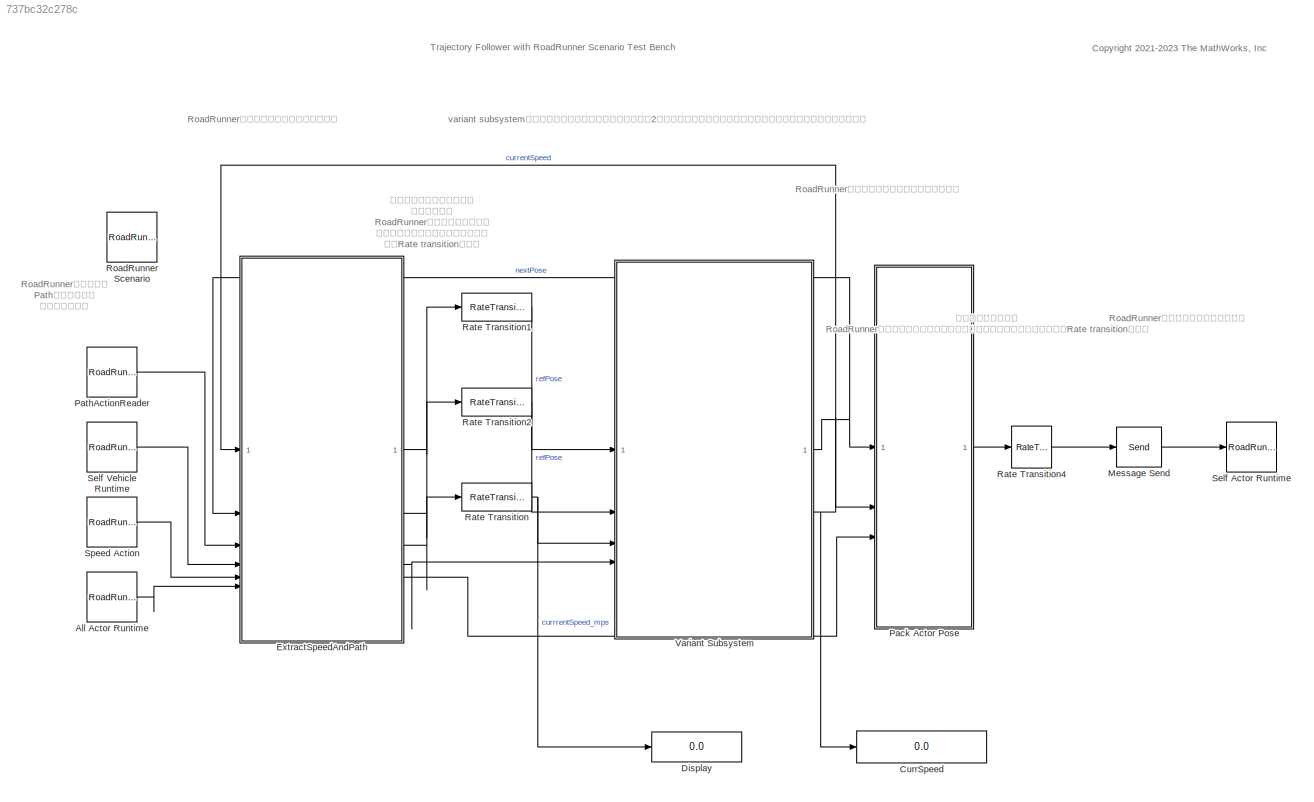
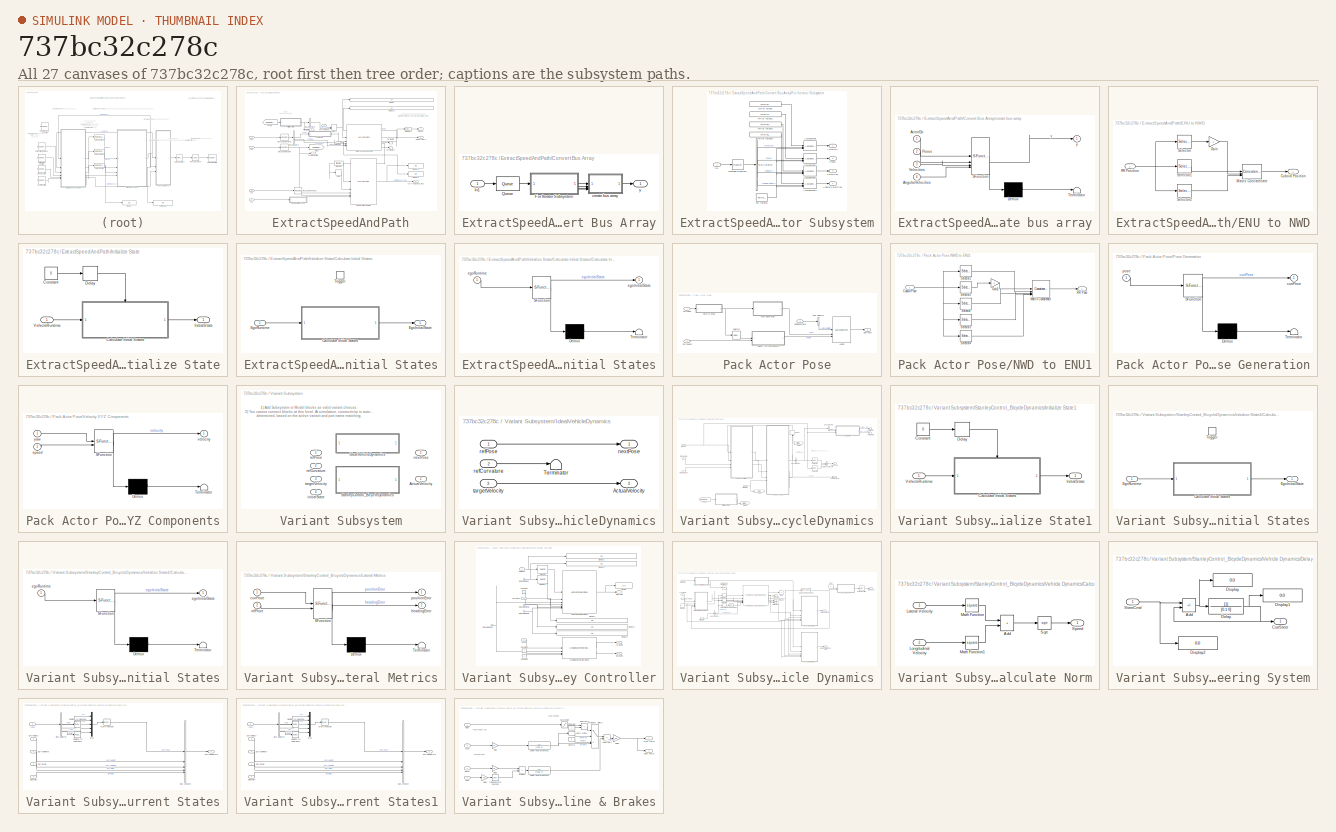
[diagram: thumbnail index - all 27 canvases of the model, root first then tree order]
MODEL slx_737bc32c278c
KIND model
CONFIG AbsTol = auto
CONFIG EnableMultiTasking = off
CONFIG FixedStep = timeStep
CONFIG MaxStep = auto
CONFIG MinStep = auto
CONFIG PostLoadFcn = loadRoadRunnerBusObject();\nhelperSLTrajectoryFollowerWithRRScenarioSetup
CONFIG RelTol = 1e-3
CONFIG SampleTimeConstraint = Unconstrained
CONFIG SolverName = FixedStepAuto
CONFIG StartTime = 0
CONFIG StopTime = 1000
BLOCK [Reference] All Actor Runtime  REF=roadrunnerscenario/RoadRunner Scenario
Reader
  SourceBlock = roadrunnerscenario/RoadRunner Scenario\nReader
BLOCK [Display] CurrSpeed
  Decimation = 1
BLOCK [Display] Display
  Decimation = 1
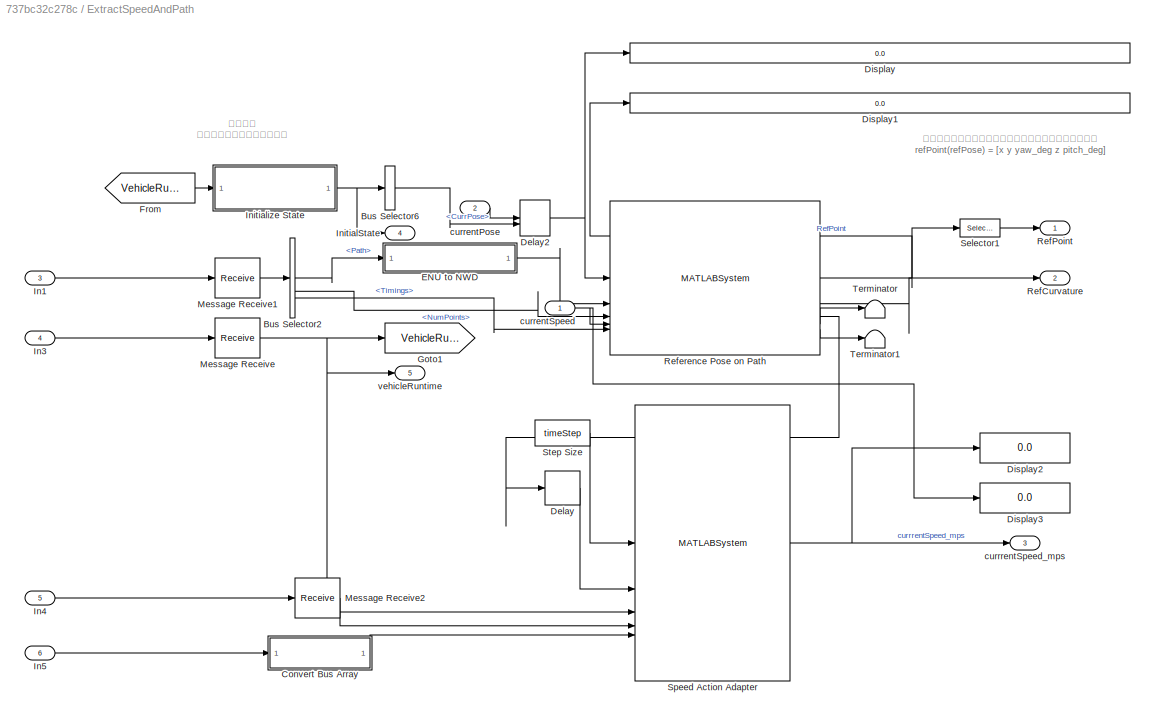
BLOCK [SubSystem] ExtractSpeedAndPath
BLOCK [BusSelector] ExtractSpeedAndPath/Bus Selector2
  OutputSignals = PathTarget.Path,PathTarget.NumPoints,PathTarget.Timings
BLOCK [BusSelector] ExtractSpeedAndPath/Bus Selector6
  OutputSignals = CurrPose
BLOCK [SubSystem] ExtractSpeedAndPath/Convert Bus Array
BLOCK [SubSystem] ExtractSpeedAndPath/Convert Bus Array/For Iterator Subsystem
  TreatAsAtomicUnit = on
BLOCK [Outport] ExtractSpeedAndPath/Convert Bus Array/For Iterator Subsystem/ActorIDs
BLOCK [Outport] ExtractSpeedAndPath/Convert Bus Array/For Iterator Subsystem/AngularVelocities
  Port = 4
BLOCK [Assignment] ExtractSpeedAndPath/Convert Bus Array/For Iterator Subsystem/Assignment
  DiagnosticForDimensions = Warning
  IndexOptions = Index vector (port)
  Indices = 1
  OutputSizes = 1
BLOCK [Assignment] ExtractSpeedAndPath/Convert Bus Array/For Iterator Subsystem/Assignment1
  DiagnosticForDimensions = Warning
  IndexOptions = Assign all,Assign all,Index vector (port)
  Indices = 1,1,1
  NumberOfDimensions = 3
  OutputSizes = 1,1,1
BLOCK [Assignment] ExtractSpeedAndPath/Convert Bus Array/For Iterator Subsystem/Assignment2
  DiagnosticForDimensions = Warning
  IndexOptions = Index vector (port),Assign all
  Indices = 1,1
  NumberOfDimensions = 2
  OutputSizes = 1,1
BLOCK [Assignment] ExtractSpeedAndPath/Convert Bus Array/For Iterator Subsystem/Assignment3
  DiagnosticForDimensions = Warning
  IndexOptions = Index vector (port),Assign all
  Indices = 1,1
  NumberOfDimensions = 2
  OutputSizes = 1,1
BLOCK [BusSelector] ExtractSpeedAndPath/Convert Bus Array/For Iterator Subsystem/Bus Selector
  OutputSignals = ActorID,Pose,Velocity,AngularVelocity
BLOCK [ForIterator] ExtractSpeedAndPath/Convert Bus Array/For Iterator Subsystem/For Iterator
  IterationLimit = N
BLOCK [Inport] ExtractSpeedAndPath/Convert Bus Array/For Iterator Subsystem/In1
BLOCK [Constant] ExtractSpeedAndPath/Convert Bus Array/For Iterator Subsystem/Initial values
  Value = zeros(N, 1, 'uint64')
BLOCK [Constant] ExtractSpeedAndPath/Convert Bus Array/For Iterator Subsystem/Initial values1
  Value = zeros(4, 4, N, 'double')
BLOCK [Constant] ExtractSpeedAndPath/Convert Bus Array/For Iterator Subsystem/Initial values2
  Value = zeros(N, 3, 'double')
BLOCK [Constant] ExtractSpeedAndPath/Convert Bus Array/For Iterator Subsystem/Initial values3
  Value = zeros(N, 3, 'double')
BLOCK [Receive] ExtractSpeedAndPath/Convert Bus Array/For Iterator Subsystem/Message Receive2
  InputPortMap = u0
  InputPortMessageModes = m
  OutputPortMap = o1
  UseInternalQueue = off
BLOCK [Outport] ExtractSpeedAndPath/Convert Bus Array/For Iterator Subsystem/Poses
  Port = 2
BLOCK [Outport] ExtractSpeedAndPath/Convert Bus Array/For Iterator Subsystem/Velocities
  Port = 3
BLOCK [Inport] ExtractSpeedAndPath/Convert Bus Array/In1
BLOCK [Queue] ExtractSpeedAndPath/Convert Bus Array/Queue
  Capacity = N
  InputPortMap = u0
  InputPortMessageModes = m
  OutputPortMap = o5
  OutputPortMessageModes = m
  OverwriteOldest = on
  QueueType = LIFO
BLOCK [SubSystem] ExtractSpeedAndPath/Convert Bus Array/create bus array
  ErrorFcn = Stateflow.Translate.translate
  PermitHierarchicalResolution = ExplicitOnly
  SFBlockType = MATLAB Function
  TreatAsAtomicUnit = on
BLOCK [Demux] ExtractSpeedAndPath/Convert Bus Array/create bus array/ Demux 
  Outputs = 1
BLOCK [S-Function] ExtractSpeedAndPath/Convert Bus Array/create bus array/ SFunction 
  EnableBusSupport = on
  FunctionName = sf_sfun
  Parameters = N
  PortCounts = [4 2]
  SFcnIsStateOwnerBlock = off
  SFunctionDeploymentMode = off
  Tag = Stateflow S-Function 4
BLOCK [Terminator] ExtractSpeedAndPath/Convert Bus Array/create bus array/ Terminator 
BLOCK [Inport] ExtractSpeedAndPath/Convert Bus Array/create bus array/ActorIDs
BLOCK [Inport] ExtractSpeedAndPath/Convert Bus Array/create bus array/AngularVelocities
  Port = 4
BLOCK [Inport] ExtractSpeedAndPath/Convert Bus Array/create bus array/Poses
  Port = 2
BLOCK [Inport] ExtractSpeedAndPath/Convert Bus Array/create bus array/Velocities
  Port = 3
BLOCK [Outport] ExtractSpeedAndPath/Convert Bus Array/create bus array/y
BLOCK [Outport] ExtractSpeedAndPath/Convert Bus Array/y
  OutDataTypeStr = Bus: BusActorRuntime
BLOCK [Delay] ExtractSpeedAndPath/Delay
  DelayLength = 1
  InitialCondition = logical(0)
  InputPortMap = u0
BLOCK [Delay] ExtractSpeedAndPath/Delay2
  DelayLength = 1
  InitialConditionSource = Input port
  InputPortMap = u0,p4
BLOCK [Display] ExtractSpeedAndPath/Display
  Decimation = 1
BLOCK [Display] ExtractSpeedAndPath/Display1
  Decimation = 1
BLOCK [Display] ExtractSpeedAndPath/Display2
  Decimation = 1
BLOCK [Display] ExtractSpeedAndPath/Display3
  Decimation = 1
BLOCK [SubSystem] ExtractSpeedAndPath/ENU to NWD
BLOCK [Outport] ExtractSpeedAndPath/ENU to NWD/Cuboid Position
BLOCK [Gain] ExtractSpeedAndPath/ENU to NWD/Gain
  Gain = -1
BLOCK [Concatenate] ExtractSpeedAndPath/ENU to NWD/Matrix Concatenate
  ConcatenateDimension = 2
  Mode = Multidimensional array
  NumInputs = 3
BLOCK [Inport] ExtractSpeedAndPath/ENU to NWD/RR Position
BLOCK [Selector] ExtractSpeedAndPath/ENU to NWD/Selector
  IndexOptions = Select all,Index vector (dialog)
  Indices = [1 3],1
  InputPortWidth = 3
  NumberOfDimensions = 2
  OutputSizes = 1,1
BLOCK [Selector] ExtractSpeedAndPath/ENU to NWD/Selector1
  IndexOptions = Select all,Index vector (dialog)
  Indices = [1 3],2
  InputPortWidth = 3
  NumberOfDimensions = 2
  OutputSizes = 1,1
BLOCK [Selector] ExtractSpeedAndPath/ENU to NWD/Selector2
  IndexOptions = Select all,Index vector (dialog)
  Indices = [1 3],3
  InputPortWidth = 3
  NumberOfDimensions = 2
  OutputSizes = 1,1
BLOCK [From] ExtractSpeedAndPath/From
  GotoTag = VehicleRuntime
BLOCK [Goto] ExtractSpeedAndPath/Goto1
  GotoTag = VehicleRuntime
BLOCK [Inport] ExtractSpeedAndPath/In1
  Port = 3
BLOCK [Inport] ExtractSpeedAndPath/In3
  Port = 4
BLOCK [Inport] ExtractSpeedAndPath/In4
  Port = 5
BLOCK [Inport] ExtractSpeedAndPath/In5
  Port = 6
BLOCK [Outport] ExtractSpeedAndPath/InitialState
  Port = 4
BLOCK [SubSystem] ExtractSpeedAndPath/Initialize State
BLOCK [SubSystem] ExtractSpeedAndPath/Initialize State/Calculate Initial States
BLOCK [SubSystem] ExtractSpeedAndPath/Initialize State/Calculate Initial States/Calculate Initial States
  ErrorFcn = Stateflow.Translate.translate
  PermitHierarchicalResolution = ExplicitOnly
  SFBlockType = MATLAB Function
  TreatAsAtomicUnit = on
BLOCK [Demux] ExtractSpeedAndPath/Initialize State/Calculate Initial States/Calculate Initial States/ Demux 
  Outputs = 1
BLOCK [S-Function] ExtractSpeedAndPath/Initialize State/Calculate Initial States/Calculate Initial States/ SFunction 
  EnableBusSupport = on
  FunctionName = sf_sfun
  PortCounts = [1 2]
  SFcnIsStateOwnerBlock = off
  SFunctionDeploymentMode = off
  Tag = Stateflow S-Function 6
BLOCK [Terminator] ExtractSpeedAndPath/Initialize State/Calculate Initial States/Calculate Initial States/ Terminator 
BLOCK [Outport] ExtractSpeedAndPath/Initialize State/Calculate Initial States/Calculate Initial States/egoInitialState
BLOCK [Inport] ExtractSpeedAndPath/Initialize State/Calculate Initial States/Calculate Initial States/egoRuntime
BLOCK [Outport] ExtractSpeedAndPath/Initialize State/Calculate Initial States/EgoInitialState
BLOCK [Inport] ExtractSpeedAndPath/Initialize State/Calculate Initial States/EgoRuntime
BLOCK [TriggerPort] ExtractSpeedAndPath/Initialize State/Calculate Initial States/Trigger
  InitialTriggerSignalState = negative
  PortDimensions = 1
  StatesWhenEnabling = held
  VariantControl = (inherit)
BLOCK [Constant] ExtractSpeedAndPath/Initialize State/Constant
  Value = 0
BLOCK [Delay] ExtractSpeedAndPath/Initialize State/Delay
  DelayLength = 1
  InitialCondition = 1
  InputPortMap = u0
BLOCK [Outport] ExtractSpeedAndPath/Initialize State/InitialState
BLOCK [Inport] ExtractSpeedAndPath/Initialize State/VehicleRuntime
BLOCK [Receive] ExtractSpeedAndPath/Message Receive
  InputPortMap = u0
  InputPortMessageModes = m
  OutputPortMap = o1
BLOCK [Receive] ExtractSpeedAndPath/Message Receive1
  InputPortMap = u0
  InputPortMessageModes = m
  OutputPortMap = o1
BLOCK [Receive] ExtractSpeedAndPath/Message Receive2
  InputPortMap = u0
  InputPortMessageModes = m
  OutputPortMap = o1
BLOCK [Outport] ExtractSpeedAndPath/RefCurvature
  Port = 2
BLOCK [Outport] ExtractSpeedAndPath/RefPoint
BLOCK [MATLABSystem] ExtractSpeedAndPath/Reference Pose on Path
  MaskDisplay = disp(['HelperReferencePoseOnPath' char(10) '' char(10) '' char(10) '' char(10) '']);\nport_label('input',1,'PrevVehicleInfo');\nport_label('input',2,'Trajectory');\nport_label('input',3,'NumTrajPoints');\nport_label('input',4,'currentSpeed');\nport_label('input',5,'Traj_timings');\nport_label('output',1,'RefPointOnPath');\nport_label('output',2,'RefCurvature');\nport_label('output',3,'IsGoalReached');\npor...<+74ch>
  MaskType = HelperReferencePoseOnPath
  SimulateUsing = Interpreted execution
  System = HelperReferencePoseOnPath
  controlTimestep = 0.1
  debugFig = false
  maxNumWaypoints = 500
  numReferencePose = numReferencePose
  output_offset = output_offset_referenceOnPath
  refPointSpeedOffset = useDynamicsStanley == false
  refPts_offset = refPts_offset
  saveFigVideo = false
  searchIndx = 10
  timeStep = timeStep
  zoomFig = 7
BLOCK [Selector] ExtractSpeedAndPath/Selector1
  IndexOptions = Index vector (dialog),Select all
  Indices = 1,1
  InputPortWidth = 3
  NumberOfDimensions = 2
  OutputSizes = 1,1
BLOCK [MATLABSystem] ExtractSpeedAndPath/Speed Action Adapter
  MaskDisplay = disp(['HelperSpeedActionAdapter' char(10) '' char(10) '']);\nport_label('input',1,'timestep');\nport_label('input',2,'stopVehicle');\nport_label('input',3,'vehicleRuntime');\nport_label('input',4,'msgSpeedAction');\nport_label('input',5,'msgAllVehicleRuntime');\nport_label('output',1,'currentSpeed');
  MaskType = HelperSpeedActionAdapter
  SimulateUsing = Interpreted execution
  System = HelperSpeedActionAdapter
  actorRuntimeNum = 16
BLOCK [Constant] ExtractSpeedAndPath/Step Size
  Value = timeStep
BLOCK [Terminator] ExtractSpeedAndPath/Terminator
BLOCK [Terminator] ExtractSpeedAndPath/Terminator1
BLOCK [Inport] ExtractSpeedAndPath/currentPose
  Port = 2
BLOCK [Inport] ExtractSpeedAndPath/currentSpeed
BLOCK [Outport] ExtractSpeedAndPath/currrentSpeed_mps
  Port = 3
BLOCK [Outport] ExtractSpeedAndPath/vehicleRuntime
  Port = 5
BLOCK [Send] Message Send
  InputPortMap = u1
  OutputPortMessageModes = m
BLOCK [SubSystem] Pack Actor Pose
BLOCK [BusAssignment] Pack Actor Pose/Assign
  AssignedSignals = Pose,Velocity
BLOCK [BusSelector] Pack Actor Pose/Bus Selector
  OutputSignals = ActorRuntime
BLOCK [Inport] Pack Actor Pose/CurrPose
BLOCK [Inport] Pack Actor Pose/CurrSpeed
  Port = 2
BLOCK [Outport] Pack Actor Pose/Ego Pose
BLOCK [SubSystem] Pack Actor Pose/NWD to ENU1
BLOCK [Inport] Pack Actor Pose/NWD to ENU1/Cuboid Pose
BLOCK [Gain] Pack Actor Pose/NWD to ENU1/Gain1
  Gain = -1
BLOCK [Concatenate] Pack Actor Pose/NWD to ENU1/Matrix Concatenate
  ConcatenateDimension = 2
  Mode = Multidimensional array
  NumInputs = 5
BLOCK [Outport] Pack Actor Pose/NWD to ENU1/RR Pose
BLOCK [Selector] Pack Actor Pose/NWD to ENU1/Selector
  IndexOptions = Index vector (dialog)
  Indices = 3
  InputPortWidth = 5
  OutputSizes = 1
BLOCK [Selector] Pack Actor Pose/NWD to ENU1/Selector1
  IndexOptions = Index vector (dialog)
  Indices = 1
  InputPortWidth = 5
  OutputSizes = 1
BLOCK [Selector] Pack Actor Pose/NWD to ENU1/Selector2
  IndexOptions = Index vector (dialog)
  Indices = 2
  InputPortWidth = 5
  OutputSizes = 1
BLOCK [Selector] Pack Actor Pose/NWD to ENU1/Selector3
  IndexOptions = Index vector (dialog)
  Indices = 4
  InputPortWidth = 5
  OutputSizes = 1
BLOCK [Selector] Pack Actor Pose/NWD to ENU1/Selector4
  IndexOptions = Index vector (dialog)
  Indices = 5
  InputPortWidth = 5
  OutputSizes = 1
BLOCK [SubSystem] Pack Actor Pose/Pose Generation
  ErrorFcn = Stateflow.Translate.translate
  PermitHierarchicalResolution = ExplicitOnly
  SFBlockType = MATLAB Function
  TreatAsAtomicUnit = on
BLOCK [Demux] Pack Actor Pose/Pose Generation/ Demux 
  Outputs = 1
BLOCK [S-Function] Pack Actor Pose/Pose Generation/ SFunction 
  EnableBusSupport = on
  FunctionName = sf_sfun
  PortCounts = [1 2]
  SFcnIsStateOwnerBlock = off
  SFunctionDeploymentMode = off
  Tag = Stateflow S-Function 1
BLOCK [Terminator] Pack Actor Pose/Pose Generation/ Terminator 
BLOCK [Outport] Pack Actor Pose/Pose Generation/currPose
BLOCK [Inport] Pack Actor Pose/Pose Generation/pose
BLOCK [Selector] Pack Actor Pose/Selector
  IndexOptions = Index vector (dialog)
  Indices = 3
  InputPortWidth = 5
  OutputSizes = 1
BLOCK [Inport] Pack Actor Pose/VehicleRuntime
  Port = 3
BLOCK [SubSystem] Pack Actor Pose/Velocity XYZ Components
  ErrorFcn = Stateflow.Translate.translate
  PermitHierarchicalResolution = ExplicitOnly
  SFBlockType = MATLAB Function
  TreatAsAtomicUnit = on
BLOCK [Demux] Pack Actor Pose/Velocity XYZ Components/ Demux 
  Outputs = 1
BLOCK [S-Function] Pack Actor Pose/Velocity XYZ Components/ SFunction 
  EnableBusSupport = on
  FunctionName = sf_sfun
  PortCounts = [2 2]
  SFcnIsStateOwnerBlock = off
  SFunctionDeploymentMode = off
  Tag = Stateflow S-Function 3
BLOCK [Terminator] Pack Actor Pose/Velocity XYZ Components/ Terminator 
BLOCK [Inport] Pack Actor Pose/Velocity XYZ Components/speed
  Port = 2
BLOCK [Outport] Pack Actor Pose/Velocity XYZ Components/velocity
BLOCK [Inport] Pack Actor Pose/Velocity XYZ Components/yaw
BLOCK [Reference] PathActionReader  REF=roadrunnerscenario/RoadRunner Scenario
Reader
  SourceBlock = roadrunnerscenario/RoadRunner Scenario\nReader
BLOCK [RateTransition] Rate Transition
  OutPortSampleTime = timeStep
BLOCK [RateTransition] Rate Transition1
  OutPortSampleTime = timeStep
BLOCK [RateTransition] Rate Transition2
  OutPortSampleTime = timeStep
BLOCK [RateTransition] Rate Transition4
  OutPortSampleTime = RRtimeStep
BLOCK [Reference] RoadRunner Scenario  REF=roadrunnerscenario/RoadRunner Scenario
  SourceBlock = roadrunnerscenario/RoadRunner Scenario
BLOCK [Reference] Self Actor Runtime  REF=roadrunnerscenario/RoadRunner Scenario
Writer
  SourceBlock = roadrunnerscenario/RoadRunner Scenario\nWriter
BLOCK [Reference] Self Vehicle Runtime  REF=roadrunnerscenario/RoadRunner Scenario
Reader
  SourceBlock = roadrunnerscenario/RoadRunner Scenario\nReader
BLOCK [Reference] Speed Action  REF=roadrunnerscenario/RoadRunner Scenario
Reader
  SourceBlock = roadrunnerscenario/RoadRunner Scenario\nReader
BLOCK [SubSystem] Variant Subsystem
  Variant = on
BLOCK [Outport] Variant Subsystem/ActualVelocity
  Port = 2
BLOCK [SubSystem] Variant Subsystem/IdealVehicleDynamics
  VariantControl = useDynamicsStanley == false
BLOCK [Outport] Variant Subsystem/IdealVehicleDynamics/ActualVelocity
  Port = 2
BLOCK [Terminator] Variant Subsystem/IdealVehicleDynamics/Terminator
BLOCK [Outport] Variant Subsystem/IdealVehicleDynamics/nextPose
BLOCK [Inport] Variant Subsystem/IdealVehicleDynamics/refCurvature
  Port = 2
BLOCK [Inport] Variant Subsystem/IdealVehicleDynamics/refPose
BLOCK [Inport] Variant Subsystem/IdealVehicleDynamics/targetVelocity
  Port = 3
BLOCK [SubSystem] Variant Subsystem/StanleyControl_BicycleDynamics
  VariantControl = useDynamicsStanley == true
BLOCK [Outport] Variant Subsystem/StanleyControl_BicycleDynamics/ActualVelocity
  Port = 2
BLOCK [BusSelector] Variant Subsystem/StanleyControl_BicycleDynamics/Bus Selector
  OutputSignals = CurrPose
BLOCK [BusSelector] Variant Subsystem/StanleyControl_BicycleDynamics/Bus Selector2
  Commented = on
  OutputSignals = CurrPose
BLOCK [Delay] Variant Subsystem/StanleyControl_BicycleDynamics/Delay1
  DelayLength = 1
  InitialConditionSource = Input port
  InputPortMap = u0,p4
  NameLocation = right
BLOCK [From] Variant Subsystem/StanleyControl_BicycleDynamics/From2
  Commented = on
  GotoTag = VehicleRuntime
BLOCK [From] Variant Subsystem/StanleyControl_BicycleDynamics/From3
  GotoTag = InitialState
  NameLocation = top
BLOCK [Goto] Variant Subsystem/StanleyControl_BicycleDynamics/Goto
  GotoTag = InitialState
BLOCK [Goto] Variant Subsystem/StanleyControl_BicycleDynamics/Goto2
  Commented = on
  GotoTag = InitialState
BLOCK [SubSystem] Variant Subsystem/StanleyControl_BicycleDynamics/Initialize State1
  Commented = on
BLOCK [SubSystem] Variant Subsystem/StanleyControl_BicycleDynamics/Initialize State1/Calculate Initial States
BLOCK [SubSystem] Variant Subsystem/StanleyControl_BicycleDynamics/Initialize State1/Calculate Initial States/Calculate Initial States
  ErrorFcn = Stateflow.Translate.translate
  PermitHierarchicalResolution = ExplicitOnly
  SFBlockType = MATLAB Function
  TreatAsAtomicUnit = on
BLOCK [Demux] Variant Subsystem/StanleyControl_BicycleDynamics/Initialize State1/Calculate Initial States/Calculate Initial States/ Demux 
  Outputs = 1
BLOCK [S-Function] Variant Subsystem/StanleyControl_BicycleDynamics/Initialize State1/Calculate Initial States/Calculate Initial States/ SFunction 
  EnableBusSupport = off
  FunctionName = sf_sfun
  PortCounts = [1 2]
  SFcnIsStateOwnerBlock = off
  SFunctionDeploymentMode = off
  Tag = Stateflow S-Function 2
BLOCK [Terminator] Variant Subsystem/StanleyControl_BicycleDynamics/Initialize State1/Calculate Initial States/Calculate Initial States/ Terminator 
BLOCK [Outport] Variant Subsystem/StanleyControl_BicycleDynamics/Initialize State1/Calculate Initial States/Calculate Initial States/egoInitialState
BLOCK [Inport] Variant Subsystem/StanleyControl_BicycleDynamics/Initialize State1/Calculate Initial States/Calculate Initial States/egoRuntime
BLOCK [Outport] Variant Subsystem/StanleyControl_BicycleDynamics/Initialize State1/Calculate Initial States/EgoInitialState
BLOCK [Inport] Variant Subsystem/StanleyControl_BicycleDynamics/Initialize State1/Calculate Initial States/EgoRuntime
BLOCK [TriggerPort] Variant Subsystem/StanleyControl_BicycleDynamics/Initialize State1/Calculate Initial States/Trigger
  InitialTriggerSignalState = negative
  PortDimensions = 1
  StatesWhenEnabling = held
  VariantControl = (inherit)
BLOCK [Constant] Variant Subsystem/StanleyControl_BicycleDynamics/Initialize State1/Constant
  Value = 0
BLOCK [Delay] Variant Subsystem/StanleyControl_BicycleDynamics/Initialize State1/Delay
  DelayLength = 1
  InitialCondition = 1
  InputPortMap = u0
BLOCK [Outport] Variant Subsystem/StanleyControl_BicycleDynamics/Initialize State1/InitialState
BLOCK [Inport] Variant Subsystem/StanleyControl_BicycleDynamics/Initialize State1/VehicleRuntime
BLOCK [SubSystem] Variant Subsystem/StanleyControl_BicycleDynamics/Lateral Metrics
  Commented = on
  ErrorFcn = Stateflow.Translate.translate
  PermitHierarchicalResolution = ExplicitOnly
  SFBlockType = MATLAB Function
  TreatAsAtomicUnit = on
BLOCK [Demux] Variant Subsystem/StanleyControl_BicycleDynamics/Lateral Metrics/ Demux 
  Outputs = 1
BLOCK [S-Function] Variant Subsystem/StanleyControl_BicycleDynamics/Lateral Metrics/ SFunction 
  EnableBusSupport = off
  FunctionName = sf_sfun
  PortCounts = [2 3]
  SFcnIsStateOwnerBlock = off
  SFunctionDeploymentMode = off
  Tag = Stateflow S-Function 5
BLOCK [Terminator] Variant Subsystem/StanleyControl_BicycleDynamics/Lateral Metrics/ Terminator 
BLOCK [Inport] Variant Subsystem/StanleyControl_BicycleDynamics/Lateral Metrics/currPose
BLOCK [Outport] Variant Subsystem/StanleyControl_BicycleDynamics/Lateral Metrics/headingError
  Port = 2
  VectorParamsAs1DForOutWhenUnconnected = off
BLOCK [Outport] Variant Subsystem/StanleyControl_BicycleDynamics/Lateral Metrics/positionError
  VectorParamsAs1DForOutWhenUnconnected = off
BLOCK [Inport] Variant Subsystem/StanleyControl_BicycleDynamics/Lateral Metrics/refPose
  Port = 2
BLOCK [Selector] Variant Subsystem/StanleyControl_BicycleDynamics/Selector
  IndexOptions = Index vector (dialog)
  Indices = 1:3
  InputPortWidth = 5
  OutputSizes = 1
BLOCK [Selector] Variant Subsystem/StanleyControl_BicycleDynamics/Selector1
  IndexOptions = Index vector (dialog)
  Indices = 4:5
  InputPortWidth = 5
  OutputSizes = 1
BLOCK [SubSystem] Variant Subsystem/StanleyControl_BicycleDynamics/Stanley Controller
BLOCK [Outport] Variant Subsystem/StanleyControl_BicycleDynamics/Stanley Controller/AccelCmd
  Port = 2
BLOCK [Constant] Variant Subsystem/StanleyControl_BicycleDynamics/Stanley Controller/Constant1
BLOCK [Constant] Variant Subsystem/StanleyControl_BicycleDynamics/Stanley Controller/Constant2
BLOCK [Constant] Variant Subsystem/StanleyControl_BicycleDynamics/Stanley Controller/Constant3
  Value = 0
BLOCK [Inport] Variant Subsystem/StanleyControl_BicycleDynamics/Stanley Controller/Curvature
  Port = 3
BLOCK [Outport] Variant Subsystem/StanleyControl_BicycleDynamics/Stanley Controller/DecelCmd
  Port = 3
BLOCK [Display] Variant Subsystem/StanleyControl_BicycleDynamics/Stanley Controller/Display
  Decimation = 1
BLOCK [Display] Variant Subsystem/StanleyControl_BicycleDynamics/Stanley Controller/Display1
  Decimation = 1
BLOCK [Display] Variant Subsystem/StanleyControl_BicycleDynamics/Stanley Controller/Display2
  Decimation = 1
BLOCK [Display] Variant Subsystem/StanleyControl_BicycleDynamics/Stanley Controller/Display3
  Decimation = 1
BLOCK [Display] Variant Subsystem/StanleyControl_BicycleDynamics/Stanley Controller/Display4
  Decimation = 1
BLOCK [Display] Variant Subsystem/StanleyControl_BicycleDynamics/Stanley Controller/Display5
  Decimation = 1
BLOCK [Inport] Variant Subsystem/StanleyControl_BicycleDynamics/Stanley Controller/In Bus Element
BLOCK [Inport] Variant Subsystem/StanleyControl_BicycleDynamics/Stanley Controller/In Bus Element1
BLOCK [Inport] Variant Subsystem/StanleyControl_BicycleDynamics/Stanley Controller/In Bus Element2
BLOCK [Inport] Variant Subsystem/StanleyControl_BicycleDynamics/Stanley Controller/In Bus Element3
BLOCK [Reference] Variant Subsystem/StanleyControl_BicycleDynamics/Stanley Controller/Lateral Controller Stanley  REF=drivingvehiclecontroller/Lateral Controller Stanley
  SourceBlock = drivingvehiclecontroller/Lateral Controller Stanley
  SourceType = Lateral Controller Stanley
BLOCK [Reference] Variant Subsystem/StanleyControl_BicycleDynamics/Stanley Controller/Longitudinal Controller Stanley  REF=drivingvehiclecontroller/Longitudinal Controller Stanley
  SourceBlock = drivingvehiclecontroller/Longitudinal Controller Stanley
  SourceType = Longitudinal Controller Stanley
BLOCK [Inport] Variant Subsystem/StanleyControl_BicycleDynamics/Stanley Controller/RefPose
  Port = 2
BLOCK [Selector] Variant Subsystem/StanleyControl_BicycleDynamics/Stanley Controller/Selector
  IndexOptions = Index vector (dialog)
  Indices = [1:3]
  InputPortWidth = 5
  OutputSizes = 1
BLOCK [Selector] Variant Subsystem/StanleyControl_BicycleDynamics/Stanley Controller/Selector1
  IndexOptions = Index vector (dialog)
  Indices = [1:3]
  InputPortWidth = 5
  OutputSizes = 1
BLOCK [Inport] Variant Subsystem/StanleyControl_BicycleDynamics/Stanley Controller/Speed
  Port = 4
BLOCK [Outport] Variant Subsystem/StanleyControl_BicycleDynamics/Stanley Controller/SteerCmd
BLOCK [Terminator] Variant Subsystem/StanleyControl_BicycleDynamics/Terminator
  Commented = on
BLOCK [Terminator] Variant Subsystem/StanleyControl_BicycleDynamics/Terminator1
  Commented = on
BLOCK [Concatenate] Variant Subsystem/StanleyControl_BicycleDynamics/Vector Concatenate
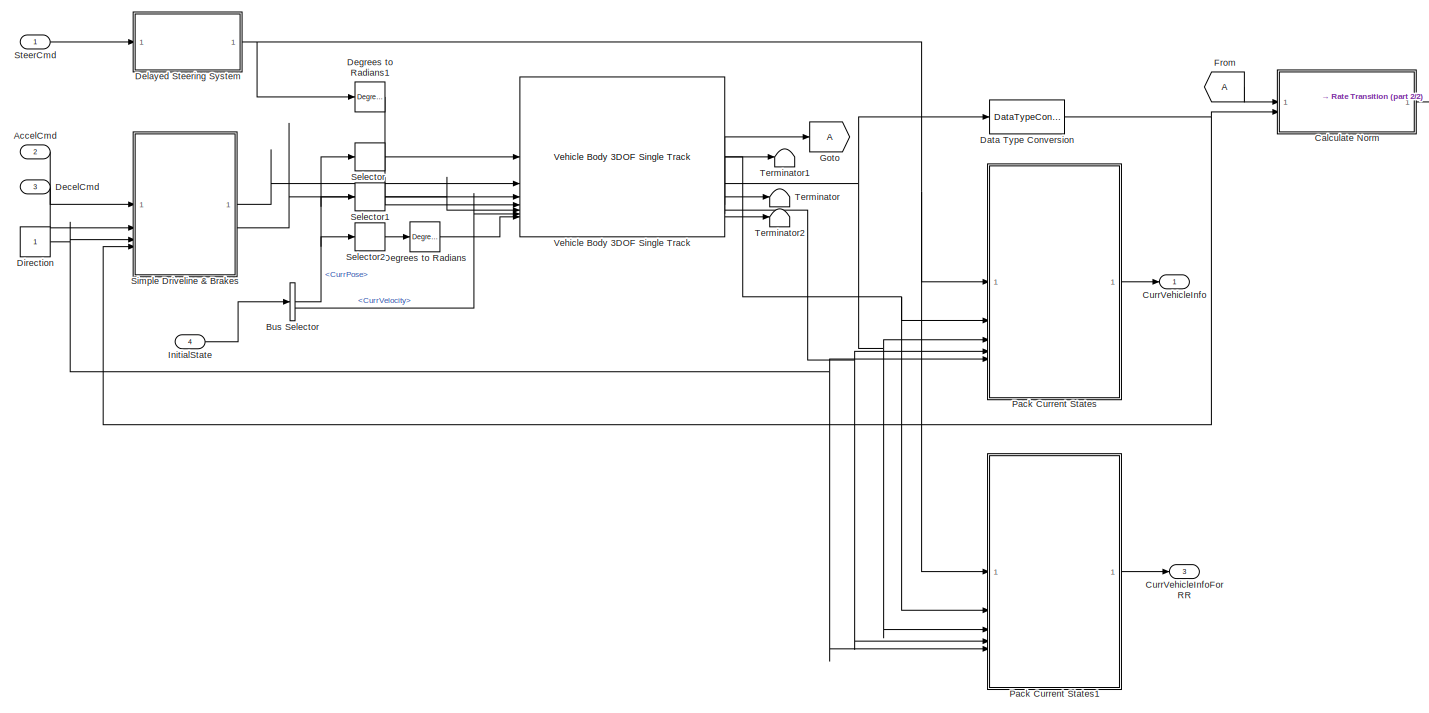
[diagram: Variant Subsystem/StanleyControl_BicycleDynamics/Vehicle Dynamics - part 1/2, most of the canvas]
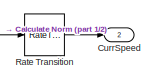
[diagram: Variant Subsystem/StanleyControl_BicycleDynamics/Vehicle Dynamics - part 2/2, top right region]
BLOCK [SubSystem] Variant Subsystem/StanleyControl_BicycleDynamics/Vehicle Dynamics
BLOCK [Inport] Variant Subsystem/StanleyControl_BicycleDynamics/Vehicle Dynamics/AccelCmd
  Port = 2
BLOCK [BusSelector] Variant Subsystem/StanleyControl_BicycleDynamics/Vehicle Dynamics/Bus Selector
  OutputSignals = CurrPose,CurrVelocity
BLOCK [SubSystem] Variant Subsystem/StanleyControl_BicycleDynamics/Vehicle Dynamics/Calculate Norm
BLOCK [Sum] Variant Subsystem/StanleyControl_BicycleDynamics/Vehicle Dynamics/Calculate Norm/Add
  IconShape = rectangular
BLOCK [Inport] Variant Subsystem/StanleyControl_BicycleDynamics/Vehicle Dynamics/Calculate Norm/Lateral Velocity
BLOCK [Inport] Variant Subsystem/StanleyControl_BicycleDynamics/Vehicle Dynamics/Calculate Norm/Longitudinal Velocity
  Port = 2
BLOCK [Math] Variant Subsystem/StanleyControl_BicycleDynamics/Vehicle Dynamics/Calculate Norm/Math Function
  Operator = square
BLOCK [Math] Variant Subsystem/StanleyControl_BicycleDynamics/Vehicle Dynamics/Calculate Norm/Math Function1
  Operator = square
BLOCK [Outport] Variant Subsystem/StanleyControl_BicycleDynamics/Vehicle Dynamics/Calculate Norm/Speed
BLOCK [Sqrt] Variant Subsystem/StanleyControl_BicycleDynamics/Vehicle Dynamics/Calculate Norm/Sqrt
BLOCK [Outport] Variant Subsystem/StanleyControl_BicycleDynamics/Vehicle Dynamics/CurrSpeed
  Port = 2
BLOCK [Outport] Variant Subsystem/StanleyControl_BicycleDynamics/Vehicle Dynamics/CurrVehicleInfo
  VectorParamsAs1DForOutWhenUnconnected = off
BLOCK [Outport] Variant Subsystem/StanleyControl_BicycleDynamics/Vehicle Dynamics/CurrVehicleInfoForRR
  Port = 3
  VectorParamsAs1DForOutWhenUnconnected = off
BLOCK [DataTypeConversion] Variant Subsystem/StanleyControl_BicycleDynamics/Vehicle Dynamics/Data Type Conversion
  OutDataTypeStr = double
  RndMeth = Floor
  SaturateOnIntegerOverflow = off
BLOCK [Inport] Variant Subsystem/StanleyControl_BicycleDynamics/Vehicle Dynamics/DecelCmd
  Port = 3
BLOCK [Reference] Variant Subsystem/StanleyControl_BicycleDynamics/Vehicle Dynamics/Degrees to Radians  REF=simulink_extras/Transformations/Degrees to
Radians
  SourceBlock = simulink_extras/Transformations/Degrees to\nRadians
  SourceType = DegreesToRadians
BLOCK [Reference] Variant Subsystem/StanleyControl_BicycleDynamics/Vehicle Dynamics/Degrees to Radians1  REF=simulink_extras/Transformations/Degrees to
Radians
  SourceBlock = simulink_extras/Transformations/Degrees to\nRadians
  SourceType = DegreesToRadians
BLOCK [SubSystem] Variant Subsystem/StanleyControl_BicycleDynamics/Vehicle Dynamics/Delayed Steering System
BLOCK [Sum] Variant Subsystem/StanleyControl_BicycleDynamics/Vehicle Dynamics/Delayed Steering System/Add
  IconShape = rectangular
  Inputs = +-
BLOCK [Outport] Variant Subsystem/StanleyControl_BicycleDynamics/Vehicle Dynamics/Delayed Steering System/CurrSteer
  VectorParamsAs1DForOutWhenUnconnected = off
BLOCK [TransferFcn] Variant Subsystem/StanleyControl_BicycleDynamics/Vehicle Dynamics/Delayed Steering System/Delay
  Denominator = [0.1 0]
BLOCK [Display] Variant Subsystem/StanleyControl_BicycleDynamics/Vehicle Dynamics/Delayed Steering System/Display
  Decimation = 1
BLOCK [Display] Variant Subsystem/StanleyControl_BicycleDynamics/Vehicle Dynamics/Delayed Steering System/Display1
  Decimation = 1
BLOCK [Display] Variant Subsystem/StanleyControl_BicycleDynamics/Vehicle Dynamics/Delayed Steering System/Display2
  Decimation = 1
BLOCK [Inport] Variant Subsystem/StanleyControl_BicycleDynamics/Vehicle Dynamics/Delayed Steering System/SteerCmd
BLOCK [Constant] Variant Subsystem/StanleyControl_BicycleDynamics/Vehicle Dynamics/Direction
BLOCK [From] Variant Subsystem/StanleyControl_BicycleDynamics/Vehicle Dynamics/From
BLOCK [Goto] Variant Subsystem/StanleyControl_BicycleDynamics/Vehicle Dynamics/Goto
BLOCK [Inport] Variant Subsystem/StanleyControl_BicycleDynamics/Vehicle Dynamics/InitialState
  Port = 4
BLOCK [SubSystem] Variant Subsystem/StanleyControl_BicycleDynamics/Vehicle Dynamics/Pack Current States
BLOCK [BusCreator] Variant Subsystem/StanleyControl_BicycleDynamics/Vehicle Dynamics/Pack Current States/Bus Creator
  DisplayOption = bar
  InheritFromInputs = off
  Inputs = 5
  NonVirtualBus = on
  OutDataTypeStr = Bus: BusVehicleInfo
BLOCK [BusSelector] Variant Subsystem/StanleyControl_BicycleDynamics/Vehicle Dynamics/Pack Current States/Bus Selector
  OutputSignals = InertFrm.RearAxl.Disp.X,InertFrm.RearAxl.Disp.Y,InertFrm.Cg.Ang.psi,InertFrm.RearAxl.Disp.Z,InertFrm.Cg.Ang.theta
BLOCK [Inport] Variant Subsystem/StanleyControl_BicycleDynamics/Vehicle Dynamics/Pack Current States/CurrSteer
BLOCK [Outport] Variant Subsystem/StanleyControl_BicycleDynamics/Vehicle Dynamics/Pack Current States/CurrVehicleInfo
  VectorParamsAs1DForOutWhenUnconnected = off
BLOCK [Inport] Variant Subsystem/StanleyControl_BicycleDynamics/Vehicle Dynamics/Pack Current States/CurrVelocity
  Port = 3
BLOCK [Inport] Variant Subsystem/StanleyControl_BicycleDynamics/Vehicle Dynamics/Pack Current States/CurrYawRate
  Port = 4
BLOCK [Inport] Variant Subsystem/StanleyControl_BicycleDynamics/Vehicle Dynamics/Pack Current States/Direction
  Port = 5
BLOCK [Inport] Variant Subsystem/StanleyControl_BicycleDynamics/Vehicle Dynamics/Pack Current States/Info
  Port = 2
BLOCK [Math] Variant Subsystem/StanleyControl_BicycleDynamics/Vehicle Dynamics/Pack Current States/Math Function
  Operator = transpose
  SignedPower = on
BLOCK [Mux] Variant Subsystem/StanleyControl_BicycleDynamics/Vehicle Dynamics/Pack Current States/Mux
  DisplayOption = bar
  Inputs = 5
BLOCK [Reference] Variant Subsystem/StanleyControl_BicycleDynamics/Vehicle Dynamics/Pack Current States/Radians to Degrees  REF=simulink_extras/Transformations/Radians
to Degrees
  SourceBlock = simulink_extras/Transformations/Radians\nto Degrees
  SourceType = RadiansToDegrees
BLOCK [Reference] Variant Subsystem/StanleyControl_BicycleDynamics/Vehicle Dynamics/Pack Current States/Radians to Degrees1  REF=simulink_extras/Transformations/Radians
to Degrees
  SourceBlock = simulink_extras/Transformations/Radians\nto Degrees
  SourceType = RadiansToDegrees
BLOCK [SubSystem] Variant Subsystem/StanleyControl_BicycleDynamics/Vehicle Dynamics/Pack Current States1
BLOCK [BusCreator] Variant Subsystem/StanleyControl_BicycleDynamics/Vehicle Dynamics/Pack Current States1/Bus Creator
  DisplayOption = bar
  InheritFromInputs = off
  Inputs = 5
  NonVirtualBus = on
  OutDataTypeStr = Bus: BusVehicleInfo
BLOCK [BusSelector] Variant Subsystem/StanleyControl_BicycleDynamics/Vehicle Dynamics/Pack Current States1/Bus Selector
  OutputSignals = InertFrm.Cg.Disp.X,InertFrm.Cg.Disp.Y,InertFrm.Cg.Ang.psi,InertFrm.Cg.Disp.Z,InertFrm.Cg.Ang.theta
BLOCK [Inport] Variant Subsystem/StanleyControl_BicycleDynamics/Vehicle Dynamics/Pack Current States1/CurrSteer
BLOCK [Outport] Variant Subsystem/StanleyControl_BicycleDynamics/Vehicle Dynamics/Pack Current States1/CurrVehicleInfo
  VectorParamsAs1DForOutWhenUnconnected = off
BLOCK [Inport] Variant Subsystem/StanleyControl_BicycleDynamics/Vehicle Dynamics/Pack Current States1/CurrVelocity
  Port = 3
BLOCK [Inport] Variant Subsystem/StanleyControl_BicycleDynamics/Vehicle Dynamics/Pack Current States1/CurrYawRate
  Port = 4
BLOCK [Inport] Variant Subsystem/StanleyControl_BicycleDynamics/Vehicle Dynamics/Pack Current States1/Direction
  Port = 5
BLOCK [Inport] Variant Subsystem/StanleyControl_BicycleDynamics/Vehicle Dynamics/Pack Current States1/Info
  Port = 2
BLOCK [Math] Variant Subsystem/StanleyControl_BicycleDynamics/Vehicle Dynamics/Pack Current States1/Math Function
  Operator = transpose
  SignedPower = on
BLOCK [Mux] Variant Subsystem/StanleyControl_BicycleDynamics/Vehicle Dynamics/Pack Current States1/Mux
  DisplayOption = bar
  Inputs = 5
BLOCK [Reference] Variant Subsystem/StanleyControl_BicycleDynamics/Vehicle Dynamics/Pack Current States1/Radians to Degrees  REF=simulink_extras/Transformations/Radians
to Degrees
  SourceBlock = simulink_extras/Transformations/Radians\nto Degrees
  SourceType = RadiansToDegrees
BLOCK [Reference] Variant Subsystem/StanleyControl_BicycleDynamics/Vehicle Dynamics/Pack Current States1/Radians to Degrees1  REF=simulink_extras/Transformations/Radians
to Degrees
  SourceBlock = simulink_extras/Transformations/Radians\nto Degrees
  SourceType = RadiansToDegrees
BLOCK [RateTransition] Variant Subsystem/StanleyControl_BicycleDynamics/Vehicle Dynamics/Rate Transition
BLOCK [Selector] Variant Subsystem/StanleyControl_BicycleDynamics/Vehicle Dynamics/Selector
  IndexOptions = Index vector (dialog)
  Indices = 1
  InputPortWidth = 5
  OutputSizes = 1
BLOCK [Selector] Variant Subsystem/StanleyControl_BicycleDynamics/Vehicle Dynamics/Selector1
  IndexOptions = Index vector (dialog)
  Indices = 2
  InputPortWidth = 5
  OutputSizes = 1
BLOCK [Selector] Variant Subsystem/StanleyControl_BicycleDynamics/Vehicle Dynamics/Selector2
  IndexOptions = Index vector (dialog)
  Indices = 3
  InputPortWidth = 5
  OutputSizes = 1
BLOCK [SubSystem] Variant Subsystem/StanleyControl_BicycleDynamics/Vehicle Dynamics/Simple Driveline & Brakes
BLOCK [Inport] Variant Subsystem/StanleyControl_BicycleDynamics/Vehicle Dynamics/Simple Driveline & Brakes/Accel
  NameLocation = top
BLOCK [Constant] Variant Subsystem/StanleyControl_BicycleDynamics/Vehicle Dynamics/Simple Driveline & Brakes/Constant
BLOCK [Inport] Variant Subsystem/StanleyControl_BicycleDynamics/Vehicle Dynamics/Simple Driveline & Brakes/Decel
  NameLocation = top
  Port = 2
BLOCK [Outport] Variant Subsystem/StanleyControl_BicycleDynamics/Vehicle Dynamics/Simple Driveline & Brakes/Front Force
  VectorParamsAs1DForOutWhenUnconnected = off
BLOCK [Gain] Variant Subsystem/StanleyControl_BicycleDynamics/Vehicle Dynamics/Simple Driveline & Brakes/Gain
  Gain = m
BLOCK [Gain] Variant Subsystem/StanleyControl_BicycleDynamics/Vehicle Dynamics/Simple Driveline & Brakes/Gain1
  Gain = 0.8
BLOCK [Gain] Variant Subsystem/StanleyControl_BicycleDynamics/Vehicle Dynamics/Simple Driveline & Brakes/Gain2
  Gain = m
BLOCK [Gain] Variant Subsystem/StanleyControl_BicycleDynamics/Vehicle Dynamics/Simple Driveline & Brakes/Gain3
  Gain = 0.5
BLOCK [Inport] Variant Subsystem/StanleyControl_BicycleDynamics/Vehicle Dynamics/Simple Driveline & Brakes/Gear
  Port = 3
BLOCK [TransferFcn] Variant Subsystem/StanleyControl_BicycleDynamics/Vehicle Dynamics/Simple Driveline & Brakes/Lower level dynamics1
  Denominator = [tau 1]
BLOCK [TransferFcn] Variant Subsystem/StanleyControl_BicycleDynamics/Vehicle Dynamics/Simple Driveline & Brakes/Lower level dynamics2
  Denominator = [tau2 1]
BLOCK [MultiPortSwitch] Variant Subsystem/StanleyControl_BicycleDynamics/Vehicle Dynamics/Simple Driveline & Brakes/Multiport Switch
  DataPortOrder = Zero-based contiguous
  InputSameDT = off
  SaturateOnIntegerOverflow = off
  zeroidx = on
BLOCK [Constant] Variant Subsystem/StanleyControl_BicycleDynamics/Vehicle Dynamics/Simple Driveline & Brakes/Neutral
  Value = 0
BLOCK [Product] Variant Subsystem/StanleyControl_BicycleDynamics/Vehicle Dynamics/Simple Driveline & Brakes/Product
BLOCK [Outport] Variant Subsystem/StanleyControl_BicycleDynamics/Vehicle Dynamics/Simple Driveline & Brakes/Rear Force
  Port = 2
  VectorParamsAs1DForOutWhenUnconnected = off
BLOCK [Saturate] Variant Subsystem/StanleyControl_BicycleDynamics/Vehicle Dynamics/Simple Driveline & Brakes/Saturation
  LowerLimit = -1
  UpperLimit = 1
  ZeroCross = off
BLOCK [Sum] Variant Subsystem/StanleyControl_BicycleDynamics/Vehicle Dynamics/Simple Driveline & Brakes/Subtract1
  IconShape = rectangular
  Inputs = +-
BLOCK [Sum] Variant Subsystem/StanleyControl_BicycleDynamics/Vehicle Dynamics/Simple Driveline & Brakes/Subtract2
  IconShape = rectangular
BLOCK [Trigonometry] Variant Subsystem/StanleyControl_BicycleDynamics/Vehicle Dynamics/Simple Driveline & Brakes/Trigonometric Function
  Operator = tanh
BLOCK [UnaryMinus] Variant Subsystem/StanleyControl_BicycleDynamics/Vehicle Dynamics/Simple Driveline & Brakes/Unary Minus
BLOCK [Inport] Variant Subsystem/StanleyControl_BicycleDynamics/Vehicle Dynamics/Simple Driveline & Brakes/xdot
  Port = 4
BLOCK [Inport] Variant Subsystem/StanleyControl_BicycleDynamics/Vehicle Dynamics/SteerCmd
BLOCK [Terminator] Variant Subsystem/StanleyControl_BicycleDynamics/Vehicle Dynamics/Terminator
BLOCK [Terminator] Variant Subsystem/StanleyControl_BicycleDynamics/Vehicle Dynamics/Terminator1
BLOCK [Terminator] Variant Subsystem/StanleyControl_BicycleDynamics/Vehicle Dynamics/Terminator2
BLOCK [Reference] Variant Subsystem/StanleyControl_BicycleDynamics/Vehicle Dynamics/Vehicle Body 3DOF Single Track  REF=autolibshared/Vehicle Body 3DOF Single Track
  LibrarySourceBlock = vehdynlibeom/Vehicle Body 3DOF Single Track
  SourceBlock = autolibshared/Vehicle Body 3DOF Single Track
  SourceType = Vehicle Body 3DOF Lateral
BLOCK [Inport] Variant Subsystem/StanleyControl_BicycleDynamics/initialState
  Port = 4
BLOCK [Outport] Variant Subsystem/StanleyControl_BicycleDynamics/nextPose
BLOCK [Inport] Variant Subsystem/StanleyControl_BicycleDynamics/refCurvature
  Port = 2
BLOCK [Inport] Variant Subsystem/StanleyControl_BicycleDynamics/refPose
BLOCK [Inport] Variant Subsystem/StanleyControl_BicycleDynamics/targetVelocity
  Port = 3
BLOCK [Inport] Variant Subsystem/initialState
  Port = 4
BLOCK [Outport] Variant Subsystem/nextPose
BLOCK [Inport] Variant Subsystem/refCurvature
  Port = 2
BLOCK [Inport] Variant Subsystem/refPose
BLOCK [Inport] Variant Subsystem/targetVelocity
  Port = 3
ANNOTATION (root): Trajectory Follower with RoadRunner Scenario Test Bench
ANNOTATION (root): <copyright redacted>
ANNOTATION (root): RoadRunnerからの入力 Pathや車速指示、 現在姿勢を取得
ANNOTATION (root): RoadRunnerから車速指示、パス指示を取得
ANNOTATION (root): RoadRunnerの座標系へ計算した車両姿勢を変換
ANNOTATION (root): RoadRunnerへ計算した車両姿勢を送信
ANNOTATION (root): variant subsystemにより車両がシナリオ通りに動く場合と2輪モデルにしたがってパスを追従するように制御される場合で切替
ANNOTATION (root): 遅い周期⇒速い周期へ変化 高速化のため RoadRunnerは粗い周期で動かし 制御やダイナミクスは高速に動かす ためRate transitionを挿入
ANNOTATION (root): 高速化のための工夫 RoadRunnerは粗い周期で動かし制御やダイナミクスは高速に動かすためRate transitionを挿入
ANNOTATION ExtractSpeedAndPath: 現在の速度を入力として受け取り、次時刻の姿勢を出力 refPoint(refPose) = [x y yaw_deg z pitch_deg]
ANNOTATION ExtractSpeedAndPath: 初期姿勢 初期化のみに使用するポート
ANNOTATION Variant Subsystem: 1) Add Subsystem or Model blocks as valid variant choices. 2) You cannot connect blocks at this level. At simulation, connectivity is automatically determined, based on the active variant and port name matching.
ANNOTATION Variant Subsystem/StanleyControl_BicycleDynamics: pitchとzに関しては理想値で上書き
ANNOTATION Variant Subsystem/StanleyControl_BicycleDynamics/Vehicle Dynamics/Simple Driveline & Brakes: Trivial Braking
ANNOTATION Variant Subsystem/StanleyControl_BicycleDynamics/Vehicle Dynamics/Simple Driveline & Brakes: Trivial Driveline
ANNOTATION Variant Subsystem/StanleyControl_BicycleDynamics/Vehicle Dynamics/Simple Driveline & Brakes: Trivial Powertrain
LINE All Actor Runtime:1 -> ExtractSpeedAndPath:6
LINE ExtractSpeedAndPath/Bus Selector2:1 -> ExtractSpeedAndPath/ENU to NWD:1
LINE ExtractSpeedAndPath/Bus Selector2:2 -> ExtractSpeedAndPath/Reference Pose on Path:3
LINE ExtractSpeedAndPath/Bus Selector2:3 -> ExtractSpeedAndPath/Reference Pose on Path:5
LINE ExtractSpeedAndPath/Bus Selector6:1 -> ExtractSpeedAndPath/Delay2:2
LINE ExtractSpeedAndPath/Convert Bus Array/For Iterator Subsystem/Assignment1:1 -> ExtractSpeedAndPath/Convert Bus Array/For Iterator Subsystem/Poses:1
LINE ExtractSpeedAndPath/Convert Bus Array/For Iterator Subsystem/Assignment2:1 -> ExtractSpeedAndPath/Convert Bus Array/For Iterator Subsystem/Velocities:1
LINE ExtractSpeedAndPath/Convert Bus Array/For Iterator Subsystem/Assignment3:1 -> ExtractSpeedAndPath/Convert Bus Array/For Iterator Subsystem/AngularVelocities:1
LINE ExtractSpeedAndPath/Convert Bus Array/For Iterator Subsystem/Assignment:1 -> ExtractSpeedAndPath/Convert Bus Array/For Iterator Subsystem/ActorIDs:1
LINE ExtractSpeedAndPath/Convert Bus Array/For Iterator Subsystem/Bus Selector:1 -> ExtractSpeedAndPath/Convert Bus Array/For Iterator Subsystem/Assignment:2
LINE ExtractSpeedAndPath/Convert Bus Array/For Iterator Subsystem/Bus Selector:2 -> ExtractSpeedAndPath/Convert Bus Array/For Iterator Subsystem/Assignment1:2
LINE ExtractSpeedAndPath/Convert Bus Array/For Iterator Subsystem/Bus Selector:3 -> ExtractSpeedAndPath/Convert Bus Array/For Iterator Subsystem/Assignment2:2
LINE ExtractSpeedAndPath/Convert Bus Array/For Iterator Subsystem/Bus Selector:4 -> ExtractSpeedAndPath/Convert Bus Array/For Iterator Subsystem/Assignment3:2
NET ExtractSpeedAndPath/Convert Bus Array/For Iterator Subsystem/For Iterator:1 -> ExtractSpeedAndPath/Convert Bus Array/For Iterator Subsystem/Assignment1:3, ExtractSpeedAndPath/Convert Bus Array/For Iterator Subsystem/Assignment2:3, ExtractSpeedAndPath/Convert Bus Array/For Iterator Subsystem/Assignment3:3, ExtractSpeedAndPath/Convert Bus Array/For Iterator Subsystem/Assignment:3
LINE ExtractSpeedAndPath/Convert Bus Array/For Iterator Subsystem/In1:1 -> ExtractSpeedAndPath/Convert Bus Array/For Iterator Subsystem/Message Receive2:1
LINE ExtractSpeedAndPath/Convert Bus Array/For Iterator Subsystem/Initial values1:1 -> ExtractSpeedAndPath/Convert Bus Array/For Iterator Subsystem/Assignment1:1
LINE ExtractSpeedAndPath/Convert Bus Array/For Iterator Subsystem/Initial values2:1 -> ExtractSpeedAndPath/Convert Bus Array/For Iterator Subsystem/Assignment2:1
LINE ExtractSpeedAndPath/Convert Bus Array/For Iterator Subsystem/Initial values3:1 -> ExtractSpeedAndPath/Convert Bus Array/For Iterator Subsystem/Assignment3:1
LINE ExtractSpeedAndPath/Convert Bus Array/For Iterator Subsystem/Initial values:1 -> ExtractSpeedAndPath/Convert Bus Array/For Iterator Subsystem/Assignment:1
LINE ExtractSpeedAndPath/Convert Bus Array/For Iterator Subsystem/Message Receive2:1 -> ExtractSpeedAndPath/Convert Bus Array/For Iterator Subsystem/Bus Selector:1
LINE ExtractSpeedAndPath/Convert Bus Array/For Iterator Subsystem:1 -> ExtractSpeedAndPath/Convert Bus Array/create bus array:1
LINE ExtractSpeedAndPath/Convert Bus Array/For Iterator Subsystem:2 -> ExtractSpeedAndPath/Convert Bus Array/create bus array:2
LINE ExtractSpeedAndPath/Convert Bus Array/For Iterator Subsystem:3 -> ExtractSpeedAndPath/Convert Bus Array/create bus array:3
LINE ExtractSpeedAndPath/Convert Bus Array/For Iterator Subsystem:4 -> ExtractSpeedAndPath/Convert Bus Array/create bus array:4
LINE ExtractSpeedAndPath/Convert Bus Array/In1:1 -> ExtractSpeedAndPath/Convert Bus Array/Queue:1
LINE ExtractSpeedAndPath/Convert Bus Array/Queue:1 -> ExtractSpeedAndPath/Convert Bus Array/For Iterator Subsystem:1
LINE ExtractSpeedAndPath/Convert Bus Array/create bus array:1 -> ExtractSpeedAndPath/Convert Bus Array/y:1
LINE ExtractSpeedAndPath/Convert Bus Array:1 -> ExtractSpeedAndPath/Speed Action Adapter:5
NET ExtractSpeedAndPath/Delay2:1 -> ExtractSpeedAndPath/Display:1, ExtractSpeedAndPath/Reference Pose on Path:1
LINE ExtractSpeedAndPath/Delay:1 -> ExtractSpeedAndPath/Speed Action Adapter:2
LINE ExtractSpeedAndPath/ENU to NWD/Gain:1 -> ExtractSpeedAndPath/ENU to NWD/Matrix Concatenate:2
LINE ExtractSpeedAndPath/ENU to NWD/Matrix Concatenate:1 -> ExtractSpeedAndPath/ENU to NWD/Cuboid Position:1
NET ExtractSpeedAndPath/ENU to NWD/RR Position:1 -> ExtractSpeedAndPath/ENU to NWD/Selector1:1, ExtractSpeedAndPath/ENU to NWD/Selector2:1, ExtractSpeedAndPath/ENU to NWD/Selector:1
LINE ExtractSpeedAndPath/ENU to NWD/Selector1:1 -> ExtractSpeedAndPath/ENU to NWD/Matrix Concatenate:1
LINE ExtractSpeedAndPath/ENU to NWD/Selector2:1 -> ExtractSpeedAndPath/ENU to NWD/Matrix Concatenate:3
LINE ExtractSpeedAndPath/ENU to NWD/Selector:1 -> ExtractSpeedAndPath/ENU to NWD/Gain:1
LINE ExtractSpeedAndPath/ENU to NWD:1 -> ExtractSpeedAndPath/Reference Pose on Path:2
LINE ExtractSpeedAndPath/From:1 -> ExtractSpeedAndPath/Initialize State:1
LINE ExtractSpeedAndPath/In1:1 -> ExtractSpeedAndPath/Message Receive1:1
LINE ExtractSpeedAndPath/In3:1 -> ExtractSpeedAndPath/Message Receive:1
LINE ExtractSpeedAndPath/In4:1 -> ExtractSpeedAndPath/Message Receive2:1
LINE ExtractSpeedAndPath/In5:1 -> ExtractSpeedAndPath/Convert Bus Array:1
LINE ExtractSpeedAndPath/Initialize State/Calculate Initial States/Calculate Initial States:1 -> ExtractSpeedAndPath/Initialize State/Calculate Initial States/EgoInitialState:1
LINE ExtractSpeedAndPath/Initialize State/Calculate Initial States/EgoRuntime:1 -> ExtractSpeedAndPath/Initialize State/Calculate Initial States/Calculate Initial States:1
LINE ExtractSpeedAndPath/Initialize State/Calculate Initial States:1 -> ExtractSpeedAndPath/Initialize State/InitialState:1
LINE ExtractSpeedAndPath/Initialize State/Constant:1 -> ExtractSpeedAndPath/Initialize State/Delay:1
LINE ExtractSpeedAndPath/Initialize State/Delay:1 -> ExtractSpeedAndPath/Initialize State/Calculate Initial States:trigger
LINE ExtractSpeedAndPath/Initialize State/VehicleRuntime:1 -> ExtractSpeedAndPath/Initialize State/Calculate Initial States:1
NET ExtractSpeedAndPath/Initialize State:1 -> ExtractSpeedAndPath/Bus Selector6:1, ExtractSpeedAndPath/InitialState:1
LINE ExtractSpeedAndPath/Message Receive1:1 -> ExtractSpeedAndPath/Bus Selector2:1
LINE ExtractSpeedAndPath/Message Receive2:1 -> ExtractSpeedAndPath/Speed Action Adapter:4
NET ExtractSpeedAndPath/Message Receive:1 -> ExtractSpeedAndPath/Goto1:1, ExtractSpeedAndPath/Speed Action Adapter:3, ExtractSpeedAndPath/vehicleRuntime:1
NET ExtractSpeedAndPath/Reference Pose on Path:1 -> ExtractSpeedAndPath/Display1:1, ExtractSpeedAndPath/Selector1:1
LINE ExtractSpeedAndPath/Reference Pose on Path:2 -> ExtractSpeedAndPath/RefCurvature:1
LINE ExtractSpeedAndPath/Reference Pose on Path:3 -> ExtractSpeedAndPath/Delay:1
LINE ExtractSpeedAndPath/Reference Pose on Path:4 -> ExtractSpeedAndPath/Terminator:1
LINE ExtractSpeedAndPath/Reference Pose on Path:5 -> ExtractSpeedAndPath/Terminator1:1
LINE ExtractSpeedAndPath/Selector1:1 -> ExtractSpeedAndPath/RefPoint:1
NET ExtractSpeedAndPath/Speed Action Adapter:1 -> ExtractSpeedAndPath/Display2:1, ExtractSpeedAndPath/currrentSpeed_mps:1
LINE ExtractSpeedAndPath/Step Size:1 -> ExtractSpeedAndPath/Speed Action Adapter:1
LINE ExtractSpeedAndPath/currentPose:1 -> ExtractSpeedAndPath/Delay2:1
NET ExtractSpeedAndPath/currentSpeed:1 -> ExtractSpeedAndPath/Display3:1, ExtractSpeedAndPath/Reference Pose on Path:4
LINE ExtractSpeedAndPath:1 -> Rate Transition1:1
LINE ExtractSpeedAndPath:2 -> Rate Transition2:1
LINE ExtractSpeedAndPath:3 -> Rate Transition:1
LINE ExtractSpeedAndPath:4 -> Variant Subsystem:4
LINE ExtractSpeedAndPath:5 -> Pack Actor Pose:3
LINE Message Send:1 -> Self Actor Runtime:1
LINE Pack Actor Pose/Assign:1 -> Pack Actor Pose/Ego Pose:1
LINE Pack Actor Pose/Bus Selector:1 -> Pack Actor Pose/Assign:1
LINE Pack Actor Pose/CurrPose:1 -> Pack Actor Pose/NWD to ENU1:1
LINE Pack Actor Pose/CurrSpeed:1 -> Pack Actor Pose/Velocity XYZ Components:2
NET Pack Actor Pose/NWD to ENU1/Cuboid Pose:1 -> Pack Actor Pose/NWD to ENU1/Selector1:1, Pack Actor Pose/NWD to ENU1/Selector2:1, Pack Actor Pose/NWD to ENU1/Selector3:1, Pack Actor Pose/NWD to ENU1/Selector4:1, Pack Actor Pose/NWD to ENU1/Selector:1
LINE Pack Actor Pose/NWD to ENU1/Gain1:1 -> Pack Actor Pose/NWD to ENU1/Matrix Concatenate:1
LINE Pack Actor Pose/NWD to ENU1/Matrix Concatenate:1 -> Pack Actor Pose/NWD to ENU1/RR Pose:1
LINE Pack Actor Pose/NWD to ENU1/Selector1:1 -> Pack Actor Pose/NWD to ENU1/Matrix Concatenate:2
LINE Pack Actor Pose/NWD to ENU1/Selector2:1 -> Pack Actor Pose/NWD to ENU1/Gain1:1
LINE Pack Actor Pose/NWD to ENU1/Selector3:1 -> Pack Actor Pose/NWD to ENU1/Matrix Concatenate:4
LINE Pack Actor Pose/NWD to ENU1/Selector4:1 -> Pack Actor Pose/NWD to ENU1/Matrix Concatenate:5
LINE Pack Actor Pose/NWD to ENU1/Selector:1 -> Pack Actor Pose/NWD to ENU1/Matrix Concatenate:3
NET Pack Actor Pose/NWD to ENU1:1 -> Pack Actor Pose/Pose Generation:1, Pack Actor Pose/Selector:1
LINE Pack Actor Pose/Pose Generation:1 -> Pack Actor Pose/Assign:2
LINE Pack Actor Pose/Selector:1 -> Pack Actor Pose/Velocity XYZ Components:1
LINE Pack Actor Pose/VehicleRuntime:1 -> Pack Actor Pose/Bus Selector:1
LINE Pack Actor Pose/Velocity XYZ Components:1 -> Pack Actor Pose/Assign:3
LINE Pack Actor Pose:1 -> Rate Transition4:1
LINE PathActionReader:1 -> ExtractSpeedAndPath:3
LINE Rate Transition1:1 -> Variant Subsystem:1
LINE Rate Transition2:1 -> Variant Subsystem:2
LINE Rate Transition4:1 -> Message Send:1
NET Rate Transition:1 -> Display:1, Variant Subsystem:3
LINE Self Vehicle Runtime:1 -> ExtractSpeedAndPath:4
LINE Speed Action:1 -> ExtractSpeedAndPath:5
LINE Variant Subsystem/IdealVehicleDynamics/refCurvature:1 -> Variant Subsystem/IdealVehicleDynamics/Terminator:1
LINE Variant Subsystem/IdealVehicleDynamics/refPose:1 -> Variant Subsystem/IdealVehicleDynamics/nextPose:1
LINE Variant Subsystem/IdealVehicleDynamics/targetVelocity:1 -> Variant Subsystem/IdealVehicleDynamics/ActualVelocity:1
LINE Variant Subsystem/StanleyControl_BicycleDynamics/Bus Selector2:1 -> Variant Subsystem/StanleyControl_BicycleDynamics/Lateral Metrics:1
NET Variant Subsystem/StanleyControl_BicycleDynamics/Bus Selector:1 -> Variant Subsystem/StanleyControl_BicycleDynamics/Bus Selector2:1, Variant Subsystem/StanleyControl_BicycleDynamics/Selector:1
LINE Variant Subsystem/StanleyControl_BicycleDynamics/Delay1:1 -> Variant Subsystem/StanleyControl_BicycleDynamics/Stanley Controller:1
LINE Variant Subsystem/StanleyControl_BicycleDynamics/From2:1 -> Variant Subsystem/StanleyControl_BicycleDynamics/Initialize State1:1
LINE Variant Subsystem/StanleyControl_BicycleDynamics/From3:1 -> Variant Subsystem/StanleyControl_BicycleDynamics/Delay1:2
LINE Variant Subsystem/StanleyControl_BicycleDynamics/Initialize State1/Calculate Initial States/Calculate Initial States:1 -> Variant Subsystem/StanleyControl_BicycleDynamics/Initialize State1/Calculate Initial States/EgoInitialState:1
LINE Variant Subsystem/StanleyControl_BicycleDynamics/Initialize State1/Calculate Initial States/EgoRuntime:1 -> Variant Subsystem/StanleyControl_BicycleDynamics/Initialize State1/Calculate Initial States/Calculate Initial States:1
LINE Variant Subsystem/StanleyControl_BicycleDynamics/Initialize State1/Calculate Initial States:1 -> Variant Subsystem/StanleyControl_BicycleDynamics/Initialize State1/InitialState:1
LINE Variant Subsystem/StanleyControl_BicycleDynamics/Initialize State1/Constant:1 -> Variant Subsystem/StanleyControl_BicycleDynamics/Initialize State1/Delay:1
LINE Variant Subsystem/StanleyControl_BicycleDynamics/Initialize State1/Delay:1 -> Variant Subsystem/StanleyControl_BicycleDynamics/Initialize State1/Calculate Initial States:trigger
LINE Variant Subsystem/StanleyControl_BicycleDynamics/Initialize State1/VehicleRuntime:1 -> Variant Subsystem/StanleyControl_BicycleDynamics/Initialize State1/Calculate Initial States:1
LINE Variant Subsystem/StanleyControl_BicycleDynamics/Initialize State1:1 -> Variant Subsystem/StanleyControl_BicycleDynamics/Goto2:1
LINE Variant Subsystem/StanleyControl_BicycleDynamics/Lateral Metrics:1 -> Variant Subsystem/StanleyControl_BicycleDynamics/Terminator:1
LINE Variant Subsystem/StanleyControl_BicycleDynamics/Lateral Metrics:2 -> Variant Subsystem/StanleyControl_BicycleDynamics/Terminator1:1
LINE Variant Subsystem/StanleyControl_BicycleDynamics/Selector1:1 -> Variant Subsystem/StanleyControl_BicycleDynamics/Vector Concatenate:2
LINE Variant Subsystem/StanleyControl_BicycleDynamics/Selector:1 -> Variant Subsystem/StanleyControl_BicycleDynamics/Vector Concatenate:1
LINE Variant Subsystem/StanleyControl_BicycleDynamics/Stanley Controller/Constant1:1 -> Variant Subsystem/StanleyControl_BicycleDynamics/Stanley Controller/Longitudinal Controller Stanley:3
LINE Variant Subsystem/StanleyControl_BicycleDynamics/Stanley Controller/Constant2:1 -> Variant Subsystem/StanleyControl_BicycleDynamics/Stanley Controller/Lateral Controller Stanley:4
LINE Variant Subsystem/StanleyControl_BicycleDynamics/Stanley Controller/Constant3:1 -> Variant Subsystem/StanleyControl_BicycleDynamics/Stanley Controller/Longitudinal Controller Stanley:4
NET Variant Subsystem/StanleyControl_BicycleDynamics/Stanley Controller/Curvature:1 -> Variant Subsystem/StanleyControl_BicycleDynamics/Stanley Controller/Display3:1, Variant Subsystem/StanleyControl_BicycleDynamics/Stanley Controller/Lateral Controller Stanley:5
NET Variant Subsystem/StanleyControl_BicycleDynamics/Stanley Controller/In Bus Element1:1 -> Variant Subsystem/StanleyControl_BicycleDynamics/Stanley Controller/Lateral Controller Stanley:3, Variant Subsystem/StanleyControl_BicycleDynamics/Stanley Controller/Longitudinal Controller Stanley:2
NET Variant Subsystem/StanleyControl_BicycleDynamics/Stanley Controller/In Bus Element2:1 -> Variant Subsystem/StanleyControl_BicycleDynamics/Stanley Controller/Display4:1, Variant Subsystem/StanleyControl_BicycleDynamics/Stanley Controller/Lateral Controller Stanley:6
NET Variant Subsystem/StanleyControl_BicycleDynamics/Stanley Controller/In Bus Element3:1 -> Variant Subsystem/StanleyControl_BicycleDynamics/Stanley Controller/Display5:1, Variant Subsystem/StanleyControl_BicycleDynamics/Stanley Controller/Lateral Controller Stanley:7
NET Variant Subsystem/StanleyControl_BicycleDynamics/Stanley Controller/In Bus Element:1 -> Variant Subsystem/StanleyControl_BicycleDynamics/Stanley Controller/Display2:1, Variant Subsystem/StanleyControl_BicycleDynamics/Stanley Controller/Selector1:1
NET Variant Subsystem/StanleyControl_BicycleDynamics/Stanley Controller/Lateral Controller Stanley:1 -> Variant Subsystem/StanleyControl_BicycleDynamics/Stanley Controller/Display:1, Variant Subsystem/StanleyControl_BicycleDynamics/Stanley Controller/SteerCmd:1
LINE Variant Subsystem/StanleyControl_BicycleDynamics/Stanley Controller/Longitudinal Controller Stanley:1 -> Variant Subsystem/StanleyControl_BicycleDynamics/Stanley Controller/AccelCmd:1
LINE Variant Subsystem/StanleyControl_BicycleDynamics/Stanley Controller/Longitudinal Controller Stanley:2 -> Variant Subsystem/StanleyControl_BicycleDynamics/Stanley Controller/DecelCmd:1
NET Variant Subsystem/StanleyControl_BicycleDynamics/Stanley Controller/RefPose:1 -> Variant Subsystem/StanleyControl_BicycleDynamics/Stanley Controller/Display1:1, Variant Subsystem/StanleyControl_BicycleDynamics/Stanley Controller/Selector:1
LINE Variant Subsystem/StanleyControl_BicycleDynamics/Stanley Controller/Selector1:1 -> Variant Subsystem/StanleyControl_BicycleDynamics/Stanley Controller/Lateral Controller Stanley:2
LINE Variant Subsystem/StanleyControl_BicycleDynamics/Stanley Controller/Selector:1 -> Variant Subsystem/StanleyControl_BicycleDynamics/Stanley Controller/Lateral Controller Stanley:1
LINE Variant Subsystem/StanleyControl_BicycleDynamics/Stanley Controller/Speed:1 -> Variant Subsystem/StanleyControl_BicycleDynamics/Stanley Controller/Longitudinal Controller Stanley:1
LINE Variant Subsystem/StanleyControl_BicycleDynamics/Stanley Controller:1 -> Variant Subsystem/StanleyControl_BicycleDynamics/Vehicle Dynamics:1
LINE Variant Subsystem/StanleyControl_BicycleDynamics/Stanley Controller:2 -> Variant Subsystem/StanleyControl_BicycleDynamics/Vehicle Dynamics:2
LINE Variant Subsystem/StanleyControl_BicycleDynamics/Stanley Controller:3 -> Variant Subsystem/StanleyControl_BicycleDynamics/Vehicle Dynamics:3
LINE Variant Subsystem/StanleyControl_BicycleDynamics/Vector Concatenate:1 -> Variant Subsystem/StanleyControl_BicycleDynamics/nextPose:1
LINE Variant Subsystem/StanleyControl_BicycleDynamics/Vehicle Dynamics/AccelCmd:1 -> Variant Subsystem/StanleyControl_BicycleDynamics/Vehicle Dynamics/Simple Driveline & Brakes:1
NET Variant Subsystem/StanleyControl_BicycleDynamics/Vehicle Dynamics/Bus Selector:1 -> Variant Subsystem/StanleyControl_BicycleDynamics/Vehicle Dynamics/Selector1:1, Variant Subsystem/StanleyControl_BicycleDynamics/Vehicle Dynamics/Selector2:1, Variant Subsystem/StanleyControl_BicycleDynamics/Vehicle Dynamics/Selector:1
LINE Variant Subsystem/StanleyControl_BicycleDynamics/Vehicle Dynamics/Bus Selector:2 -> Variant Subsystem/StanleyControl_BicycleDynamics/Vehicle Dynamics/Vehicle Body 3DOF Single Track:6
LINE Variant Subsystem/StanleyControl_BicycleDynamics/Vehicle Dynamics/Calculate Norm/Add:1 -> Variant Subsystem/StanleyControl_BicycleDynamics/Vehicle Dynamics/Calculate Norm/Sqrt:1
LINE Variant Subsystem/StanleyControl_BicycleDynamics/Vehicle Dynamics/Calculate Norm/Lateral Velocity:1 -> Variant Subsystem/StanleyControl_BicycleDynamics/Vehicle Dynamics/Calculate Norm/Math Function:1
LINE Variant Subsystem/StanleyControl_BicycleDynamics/Vehicle Dynamics/Calculate Norm/Longitudinal Velocity:1 -> Variant Subsystem/StanleyControl_BicycleDynamics/Vehicle Dynamics/Calculate Norm/Math Function1:1
LINE Variant Subsystem/StanleyControl_BicycleDynamics/Vehicle Dynamics/Calculate Norm/Math Function1:1 -> Variant Subsystem/StanleyControl_BicycleDynamics/Vehicle Dynamics/Calculate Norm/Add:2
LINE Variant Subsystem/StanleyControl_BicycleDynamics/Vehicle Dynamics/Calculate Norm/Math Function:1 -> Variant Subsystem/StanleyControl_BicycleDynamics/Vehicle Dynamics/Calculate Norm/Add:1
LINE Variant Subsystem/StanleyControl_BicycleDynamics/Vehicle Dynamics/Calculate Norm/Sqrt:1 -> Variant Subsystem/StanleyControl_BicycleDynamics/Vehicle Dynamics/Calculate Norm/Speed:1
LINE Variant Subsystem/StanleyControl_BicycleDynamics/Vehicle Dynamics/Calculate Norm:1 -> Variant Subsystem/StanleyControl_BicycleDynamics/Vehicle Dynamics/Rate Transition:1
NET Variant Subsystem/StanleyControl_BicycleDynamics/Vehicle Dynamics/Data Type Conversion:1 -> Variant Subsystem/StanleyControl_BicycleDynamics/Vehicle Dynamics/Calculate Norm:2, Variant Subsystem/StanleyControl_BicycleDynamics/Vehicle Dynamics/Simple Driveline & Brakes:4
LINE Variant Subsystem/StanleyControl_BicycleDynamics/Vehicle Dynamics/DecelCmd:1 -> Variant Subsystem/StanleyControl_BicycleDynamics/Vehicle Dynamics/Simple Driveline & Brakes:2
LINE Variant Subsystem/StanleyControl_BicycleDynamics/Vehicle Dynamics/Degrees to Radians1:1 -> Variant Subsystem/StanleyControl_BicycleDynamics/Vehicle Dynamics/Vehicle Body 3DOF Single Track:1
LINE Variant Subsystem/StanleyControl_BicycleDynamics/Vehicle Dynamics/Degrees to Radians:1 -> Variant Subsystem/StanleyControl_BicycleDynamics/Vehicle Dynamics/Vehicle Body 3DOF Single Track:7
NET Variant Subsystem/StanleyControl_BicycleDynamics/Vehicle Dynamics/Delayed Steering System/Add:1 -> Variant Subsystem/StanleyControl_BicycleDynamics/Vehicle Dynamics/Delayed Steering System/Delay:1, Variant Subsystem/StanleyControl_BicycleDynamics/Vehicle Dynamics/Delayed Steering System/Display:1
NET Variant Subsystem/StanleyControl_BicycleDynamics/Vehicle Dynamics/Delayed Steering System/Delay:1 -> Variant Subsystem/StanleyControl_BicycleDynamics/Vehicle Dynamics/Delayed Steering System/Add:2, Variant Subsystem/StanleyControl_BicycleDynamics/Vehicle Dynamics/Delayed Steering System/CurrSteer:1, Variant Subsystem/StanleyControl_BicycleDynamics/Vehicle Dynamics/Delayed Steering System/Display1:1
NET Variant Subsystem/StanleyControl_BicycleDynamics/Vehicle Dynamics/Delayed Steering System/SteerCmd:1 -> Variant Subsystem/StanleyControl_BicycleDynamics/Vehicle Dynamics/Delayed Steering System/Add:1, Variant Subsystem/StanleyControl_BicycleDynamics/Vehicle Dynamics/Delayed Steering System/Display2:1
NET Variant Subsystem/StanleyControl_BicycleDynamics/Vehicle Dynamics/Delayed Steering System:1 -> Variant Subsystem/StanleyControl_BicycleDynamics/Vehicle Dynamics/Degrees to Radians1:1, Variant Subsystem/StanleyControl_BicycleDynamics/Vehicle Dynamics/Pack Current States1:1, Variant Subsystem/StanleyControl_BicycleDynamics/Vehicle Dynamics/Pack Current States:1
NET Variant Subsystem/StanleyControl_BicycleDynamics/Vehicle Dynamics/Direction:1 -> Variant Subsystem/StanleyControl_BicycleDynamics/Vehicle Dynamics/Pack Current States1:5, Variant Subsystem/StanleyControl_BicycleDynamics/Vehicle Dynamics/Pack Current States:5, Variant Subsystem/StanleyControl_BicycleDynamics/Vehicle Dynamics/Simple Driveline & Brakes:3
LINE Variant Subsystem/StanleyControl_BicycleDynamics/Vehicle Dynamics/From:1 -> Variant Subsystem/StanleyControl_BicycleDynamics/Vehicle Dynamics/Calculate Norm:1
LINE Variant Subsystem/StanleyControl_BicycleDynamics/Vehicle Dynamics/InitialState:1 -> Variant Subsystem/StanleyControl_BicycleDynamics/Vehicle Dynamics/Bus Selector:1
LINE Variant Subsystem/StanleyControl_BicycleDynamics/Vehicle Dynamics/Pack Current States/Bus Creator:1 -> Variant Subsystem/StanleyControl_BicycleDynamics/Vehicle Dynamics/Pack Current States/CurrVehicleInfo:1
LINE Variant Subsystem/StanleyControl_BicycleDynamics/Vehicle Dynamics/Pack Current States/Bus Selector:1 -> Variant Subsystem/StanleyControl_BicycleDynamics/Vehicle Dynamics/Pack Current States/Mux:1
LINE Variant Subsystem/StanleyControl_BicycleDynamics/Vehicle Dynamics/Pack Current States/Bus Selector:2 -> Variant Subsystem/StanleyControl_BicycleDynamics/Vehicle Dynamics/Pack Current States/Mux:2
LINE Variant Subsystem/StanleyControl_BicycleDynamics/Vehicle Dynamics/Pack Current States/Bus Selector:3 -> Variant Subsystem/StanleyControl_BicycleDynamics/Vehicle Dynamics/Pack Current States/Radians to Degrees:1
LINE Variant Subsystem/StanleyControl_BicycleDynamics/Vehicle Dynamics/Pack Current States/Bus Selector:4 -> Variant Subsystem/StanleyControl_BicycleDynamics/Vehicle Dynamics/Pack Current States/Mux:4
LINE Variant Subsystem/StanleyControl_BicycleDynamics/Vehicle Dynamics/Pack Current States/Bus Selector:5 -> Variant Subsystem/StanleyControl_BicycleDynamics/Vehicle Dynamics/Pack Current States/Radians to Degrees1:1
LINE Variant Subsystem/StanleyControl_BicycleDynamics/Vehicle Dynamics/Pack Current States/CurrSteer:1 -> Variant Subsystem/StanleyControl_BicycleDynamics/Vehicle Dynamics/Pack Current States/Bus Creator:4
LINE Variant Subsystem/StanleyControl_BicycleDynamics/Vehicle Dynamics/Pack Current States/CurrVelocity:1 -> Variant Subsystem/StanleyControl_BicycleDynamics/Vehicle Dynamics/Pack Current States/Bus Creator:2
LINE Variant Subsystem/StanleyControl_BicycleDynamics/Vehicle Dynamics/Pack Current States/CurrYawRate:1 -> Variant Subsystem/StanleyControl_BicycleDynamics/Vehicle Dynamics/Pack Current States/Bus Creator:3
LINE Variant Subsystem/StanleyControl_BicycleDynamics/Vehicle Dynamics/Pack Current States/Direction:1 -> Variant Subsystem/StanleyControl_BicycleDynamics/Vehicle Dynamics/Pack Current States/Bus Creator:5
LINE Variant Subsystem/StanleyControl_BicycleDynamics/Vehicle Dynamics/Pack Current States/Info:1 -> Variant Subsystem/StanleyControl_BicycleDynamics/Vehicle Dynamics/Pack Current States/Bus Selector:1
LINE Variant Subsystem/StanleyControl_BicycleDynamics/Vehicle Dynamics/Pack Current States/Math Function:1 -> Variant Subsystem/StanleyControl_BicycleDynamics/Vehicle Dynamics/Pack Current States/Bus Creator:1
LINE Variant Subsystem/StanleyControl_BicycleDynamics/Vehicle Dynamics/Pack Current States/Mux:1 -> Variant Subsystem/StanleyControl_BicycleDynamics/Vehicle Dynamics/Pack Current States/Math Function:1
LINE Variant Subsystem/StanleyControl_BicycleDynamics/Vehicle Dynamics/Pack Current States/Radians to Degrees1:1 -> Variant Subsystem/StanleyControl_BicycleDynamics/Vehicle Dynamics/Pack Current States/Mux:5
LINE Variant Subsystem/StanleyControl_BicycleDynamics/Vehicle Dynamics/Pack Current States/Radians to Degrees:1 -> Variant Subsystem/StanleyControl_BicycleDynamics/Vehicle Dynamics/Pack Current States/Mux:3
LINE Variant Subsystem/StanleyControl_BicycleDynamics/Vehicle Dynamics/Pack Current States1/Bus Creator:1 -> Variant Subsystem/StanleyControl_BicycleDynamics/Vehicle Dynamics/Pack Current States1/CurrVehicleInfo:1
LINE Variant Subsystem/StanleyControl_BicycleDynamics/Vehicle Dynamics/Pack Current States1/Bus Selector:1 -> Variant Subsystem/StanleyControl_BicycleDynamics/Vehicle Dynamics/Pack Current States1/Mux:1
LINE Variant Subsystem/StanleyControl_BicycleDynamics/Vehicle Dynamics/Pack Current States1/Bus Selector:2 -> Variant Subsystem/StanleyControl_BicycleDynamics/Vehicle Dynamics/Pack Current States1/Mux:2
LINE Variant Subsystem/StanleyControl_BicycleDynamics/Vehicle Dynamics/Pack Current States1/Bus Selector:3 -> Variant Subsystem/StanleyControl_BicycleDynamics/Vehicle Dynamics/Pack Current States1/Radians to Degrees:1
LINE Variant Subsystem/StanleyControl_BicycleDynamics/Vehicle Dynamics/Pack Current States1/Bus Selector:4 -> Variant Subsystem/StanleyControl_BicycleDynamics/Vehicle Dynamics/Pack Current States1/Mux:4
LINE Variant Subsystem/StanleyControl_BicycleDynamics/Vehicle Dynamics/Pack Current States1/Bus Selector:5 -> Variant Subsystem/StanleyControl_BicycleDynamics/Vehicle Dynamics/Pack Current States1/Radians to Degrees1:1
LINE Variant Subsystem/StanleyControl_BicycleDynamics/Vehicle Dynamics/Pack Current States1/CurrSteer:1 -> Variant Subsystem/StanleyControl_BicycleDynamics/Vehicle Dynamics/Pack Current States1/Bus Creator:4
LINE Variant Subsystem/StanleyControl_BicycleDynamics/Vehicle Dynamics/Pack Current States1/CurrVelocity:1 -> Variant Subsystem/StanleyControl_BicycleDynamics/Vehicle Dynamics/Pack Current States1/Bus Creator:2
LINE Variant Subsystem/StanleyControl_BicycleDynamics/Vehicle Dynamics/Pack Current States1/CurrYawRate:1 -> Variant Subsystem/StanleyControl_BicycleDynamics/Vehicle Dynamics/Pack Current States1/Bus Creator:3
LINE Variant Subsystem/StanleyControl_BicycleDynamics/Vehicle Dynamics/Pack Current States1/Direction:1 -> Variant Subsystem/StanleyControl_BicycleDynamics/Vehicle Dynamics/Pack Current States1/Bus Creator:5
LINE Variant Subsystem/StanleyControl_BicycleDynamics/Vehicle Dynamics/Pack Current States1/Info:1 -> Variant Subsystem/StanleyControl_BicycleDynamics/Vehicle Dynamics/Pack Current States1/Bus Selector:1
LINE Variant Subsystem/StanleyControl_BicycleDynamics/Vehicle Dynamics/Pack Current States1/Math Function:1 -> Variant Subsystem/StanleyControl_BicycleDynamics/Vehicle Dynamics/Pack Current States1/Bus Creator:1
LINE Variant Subsystem/StanleyControl_BicycleDynamics/Vehicle Dynamics/Pack Current States1/Mux:1 -> Variant Subsystem/StanleyControl_BicycleDynamics/Vehicle Dynamics/Pack Current States1/Math Function:1
LINE Variant Subsystem/StanleyControl_BicycleDynamics/Vehicle Dynamics/Pack Current States1/Radians to Degrees1:1 -> Variant Subsystem/StanleyControl_BicycleDynamics/Vehicle Dynamics/Pack Current States1/Mux:5
LINE Variant Subsystem/StanleyControl_BicycleDynamics/Vehicle Dynamics/Pack Current States1/Radians to Degrees:1 -> Variant Subsystem/StanleyControl_BicycleDynamics/Vehicle Dynamics/Pack Current States1/Mux:3
LINE Variant Subsystem/StanleyControl_BicycleDynamics/Vehicle Dynamics/Pack Current States1:1 -> Variant Subsystem/StanleyControl_BicycleDynamics/Vehicle Dynamics/CurrVehicleInfoForRR:1
LINE Variant Subsystem/StanleyControl_BicycleDynamics/Vehicle Dynamics/Pack Current States:1 -> Variant Subsystem/StanleyControl_BicycleDynamics/Vehicle Dynamics/CurrVehicleInfo:1
LINE Variant Subsystem/StanleyControl_BicycleDynamics/Vehicle Dynamics/Rate Transition:1 -> Variant Subsystem/StanleyControl_BicycleDynamics/Vehicle Dynamics/CurrSpeed:1
LINE Variant Subsystem/StanleyControl_BicycleDynamics/Vehicle Dynamics/Selector1:1 -> Variant Subsystem/StanleyControl_BicycleDynamics/Vehicle Dynamics/Vehicle Body 3DOF Single Track:5
LINE Variant Subsystem/StanleyControl_BicycleDynamics/Vehicle Dynamics/Selector2:1 -> Variant Subsystem/StanleyControl_BicycleDynamics/Vehicle Dynamics/Degrees to Radians:1
LINE Variant Subsystem/StanleyControl_BicycleDynamics/Vehicle Dynamics/Selector:1 -> Variant Subsystem/StanleyControl_BicycleDynamics/Vehicle Dynamics/Vehicle Body 3DOF Single Track:4
LINE Variant Subsystem/StanleyControl_BicycleDynamics/Vehicle Dynamics/Simple Driveline & Brakes/Accel:1 -> Variant Subsystem/StanleyControl_BicycleDynamics/Vehicle Dynamics/Simple Driveline & Brakes/Gain:1
LINE Variant Subsystem/StanleyControl_BicycleDynamics/Vehicle Dynamics/Simple Driveline & Brakes/Constant:1 -> Variant Subsystem/StanleyControl_BicycleDynamics/Vehicle Dynamics/Simple Driveline & Brakes/Subtract2:2
LINE Variant Subsystem/StanleyControl_BicycleDynamics/Vehicle Dynamics/Simple Driveline & Brakes/Decel:1 -> Variant Subsystem/StanleyControl_BicycleDynamics/Vehicle Dynamics/Simple Driveline & Brakes/Gain2:1
LINE Variant Subsystem/StanleyControl_BicycleDynamics/Vehicle Dynamics/Simple Driveline & Brakes/Gain1:1 -> Variant Subsystem/StanleyControl_BicycleDynamics/Vehicle Dynamics/Simple Driveline & Brakes/Trigonometric Function:1
LINE Variant Subsystem/StanleyControl_BicycleDynamics/Vehicle Dynamics/Simple Driveline & Brakes/Gain2:1 -> Variant Subsystem/StanleyControl_BicycleDynamics/Vehicle Dynamics/Simple Driveline & Brakes/Product:1
NET Variant Subsystem/StanleyControl_BicycleDynamics/Vehicle Dynamics/Simple Driveline & Brakes/Gain3:1 -> Variant Subsystem/StanleyControl_BicycleDynamics/Vehicle Dynamics/Simple Driveline & Brakes/Front Force:1, Variant Subsystem/StanleyControl_BicycleDynamics/Vehicle Dynamics/Simple Driveline & Brakes/Rear Force:1
LINE Variant Subsystem/StanleyControl_BicycleDynamics/Vehicle Dynamics/Simple Driveline & Brakes/Gain:1 -> Variant Subsystem/StanleyControl_BicycleDynamics/Vehicle Dynamics/Simple Driveline & Brakes/Lower level dynamics1:1
LINE Variant Subsystem/StanleyControl_BicycleDynamics/Vehicle Dynamics/Simple Driveline & Brakes/Gear:1 -> Variant Subsystem/StanleyControl_BicycleDynamics/Vehicle Dynamics/Simple Driveline & Brakes/Saturation:1
NET Variant Subsystem/StanleyControl_BicycleDynamics/Vehicle Dynamics/Simple Driveline & Brakes/Lower level dynamics1:1 -> Variant Subsystem/StanleyControl_BicycleDynamics/Vehicle Dynamics/Simple Driveline & Brakes/Multiport Switch:4, Variant Subsystem/StanleyControl_BicycleDynamics/Vehicle Dynamics/Simple Driveline & Brakes/Unary Minus:1
LINE Variant Subsystem/StanleyControl_BicycleDynamics/Vehicle Dynamics/Simple Driveline & Brakes/Lower level dynamics2:1 -> Variant Subsystem/StanleyControl_BicycleDynamics/Vehicle Dynamics/Simple Driveline & Brakes/Subtract1:2
LINE Variant Subsystem/StanleyControl_BicycleDynamics/Vehicle Dynamics/Simple Driveline & Brakes/Multiport Switch:1 -> Variant Subsystem/StanleyControl_BicycleDynamics/Vehicle Dynamics/Simple Driveline & Brakes/Subtract1:1
LINE Variant Subsystem/StanleyControl_BicycleDynamics/Vehicle Dynamics/Simple Driveline & Brakes/Neutral:1 -> Variant Subsystem/StanleyControl_BicycleDynamics/Vehicle Dynamics/Simple Driveline & Brakes/Multiport Switch:3
LINE Variant Subsystem/StanleyControl_BicycleDynamics/Vehicle Dynamics/Simple Driveline & Brakes/Product:1 -> Variant Subsystem/StanleyControl_BicycleDynamics/Vehicle Dynamics/Simple Driveline & Brakes/Lower level dynamics2:1
LINE Variant Subsystem/StanleyControl_BicycleDynamics/Vehicle Dynamics/Simple Driveline & Brakes/Saturation:1 -> Variant Subsystem/StanleyControl_BicycleDynamics/Vehicle Dynamics/Simple Driveline & Brakes/Subtract2:1
LINE Variant Subsystem/StanleyControl_BicycleDynamics/Vehicle Dynamics/Simple Driveline & Brakes/Subtract1:1 -> Variant Subsystem/StanleyControl_BicycleDynamics/Vehicle Dynamics/Simple Driveline & Brakes/Gain3:1
LINE Variant Subsystem/StanleyControl_BicycleDynamics/Vehicle Dynamics/Simple Driveline & Brakes/Subtract2:1 -> Variant Subsystem/StanleyControl_BicycleDynamics/Vehicle Dynamics/Simple Driveline & Brakes/Multiport Switch:1
LINE Variant Subsystem/StanleyControl_BicycleDynamics/Vehicle Dynamics/Simple Driveline & Brakes/Trigonometric Function:1 -> Variant Subsystem/StanleyControl_BicycleDynamics/Vehicle Dynamics/Simple Driveline & Brakes/Product:2
LINE Variant Subsystem/StanleyControl_BicycleDynamics/Vehicle Dynamics/Simple Driveline & Brakes/Unary Minus:1 -> Variant Subsystem/StanleyControl_BicycleDynamics/Vehicle Dynamics/Simple Driveline & Brakes/Multiport Switch:2
LINE Variant Subsystem/StanleyControl_BicycleDynamics/Vehicle Dynamics/Simple Driveline & Brakes/xdot:1 -> Variant Subsystem/StanleyControl_BicycleDynamics/Vehicle Dynamics/Simple Driveline & Brakes/Gain1:1
LINE Variant Subsystem/StanleyControl_BicycleDynamics/Vehicle Dynamics/Simple Driveline & Brakes:1 -> Variant Subsystem/StanleyControl_BicycleDynamics/Vehicle Dynamics/Vehicle Body 3DOF Single Track:2
LINE Variant Subsystem/StanleyControl_BicycleDynamics/Vehicle Dynamics/Simple Driveline & Brakes:2 -> Variant Subsystem/StanleyControl_BicycleDynamics/Vehicle Dynamics/Vehicle Body 3DOF Single Track:3
LINE Variant Subsystem/StanleyControl_BicycleDynamics/Vehicle Dynamics/SteerCmd:1 -> Variant Subsystem/StanleyControl_BicycleDynamics/Vehicle Dynamics/Delayed Steering System:1
NET Variant Subsystem/StanleyControl_BicycleDynamics/Vehicle Dynamics/Vehicle Body 3DOF Single Track:1 -> Variant Subsystem/StanleyControl_BicycleDynamics/Vehicle Dynamics/Pack Current States1:2, Variant Subsystem/StanleyControl_BicycleDynamics/Vehicle Dynamics/Pack Current States:2
NET Variant Subsystem/StanleyControl_BicycleDynamics/Vehicle Dynamics/Vehicle Body 3DOF Single Track:2 -> Variant Subsystem/StanleyControl_BicycleDynamics/Vehicle Dynamics/Data Type Conversion:1, Variant Subsystem/StanleyControl_BicycleDynamics/Vehicle Dynamics/Pack Current States1:3, Variant Subsystem/StanleyControl_BicycleDynamics/Vehicle Dynamics/Pack Current States:3
LINE Variant Subsystem/StanleyControl_BicycleDynamics/Vehicle Dynamics/Vehicle Body 3DOF Single Track:3 -> Variant Subsystem/StanleyControl_BicycleDynamics/Vehicle Dynamics/Goto:1
LINE Variant Subsystem/StanleyControl_BicycleDynamics/Vehicle Dynamics/Vehicle Body 3DOF Single Track:4 -> Variant Subsystem/StanleyControl_BicycleDynamics/Vehicle Dynamics/Terminator1:1
NET Variant Subsystem/StanleyControl_BicycleDynamics/Vehicle Dynamics/Vehicle Body 3DOF Single Track:5 -> Variant Subsystem/StanleyControl_BicycleDynamics/Vehicle Dynamics/Pack Current States1:4, Variant Subsystem/StanleyControl_BicycleDynamics/Vehicle Dynamics/Pack Current States:4
LINE Variant Subsystem/StanleyControl_BicycleDynamics/Vehicle Dynamics/Vehicle Body 3DOF Single Track:6 -> Variant Subsystem/StanleyControl_BicycleDynamics/Vehicle Dynamics/Terminator:1
LINE Variant Subsystem/StanleyControl_BicycleDynamics/Vehicle Dynamics/Vehicle Body 3DOF Single Track:7 -> Variant Subsystem/StanleyControl_BicycleDynamics/Vehicle Dynamics/Terminator2:1
LINE Variant Subsystem/StanleyControl_BicycleDynamics/Vehicle Dynamics:1 -> Variant Subsystem/StanleyControl_BicycleDynamics/Delay1:1
LINE Variant Subsystem/StanleyControl_BicycleDynamics/Vehicle Dynamics:2 -> Variant Subsystem/StanleyControl_BicycleDynamics/ActualVelocity:1
LINE Variant Subsystem/StanleyControl_BicycleDynamics/Vehicle Dynamics:3 -> Variant Subsystem/StanleyControl_BicycleDynamics/Bus Selector:1
NET Variant Subsystem/StanleyControl_BicycleDynamics/initialState:1 -> Variant Subsystem/StanleyControl_BicycleDynamics/Goto:1, Variant Subsystem/StanleyControl_BicycleDynamics/Vehicle Dynamics:4
LINE Variant Subsystem/StanleyControl_BicycleDynamics/refCurvature:1 -> Variant Subsystem/StanleyControl_BicycleDynamics/Stanley Controller:3
NET Variant Subsystem/StanleyControl_BicycleDynamics/refPose:1 -> Variant Subsystem/StanleyControl_BicycleDynamics/Lateral Metrics:2, Variant Subsystem/StanleyControl_BicycleDynamics/Selector1:1, Variant Subsystem/StanleyControl_BicycleDynamics/Stanley Controller:2
LINE Variant Subsystem/StanleyControl_BicycleDynamics/targetVelocity:1 -> Variant Subsystem/StanleyControl_BicycleDynamics/Stanley Controller:4
NET Variant Subsystem:1 -> ExtractSpeedAndPath:2, Pack Actor Pose:1
NET Variant Subsystem:2 -> CurrSpeed:1, ExtractSpeedAndPath:1, Pack Actor Pose:2
note: NET lines group one-source signal fan-out (src -> all destinations, sorted); 1:1 wires keep LINE
CHART Pack Actor Pose/Pose Generation states=1 transitions=1
  STATE_LABEL 'eML_blk_kernel()'
  STATE_LABEL 'SCRIPT:\nfunction currPose = generatePose(pose)\n% pose = [x y yaw_rad z pitch_rad]\nyaw = deg2rad(pose(3));\npitch = deg2rad(pose(5));\nrotm = eul2rotm([yaw 0 pitch], "ZYX");\n\ncurrPose = [[rotm [pose([1 2 4])]\']; [0 0 0 1]];'
CHART Variant Subsystem/StanleyControl_BicycleDynamics/Initialize State1/Calculate Initial States/Calculate Initial States states=1 transitions=1
  STATE_LABEL 'eML_blk_kernel()'
  STATE_LABEL 'SCRIPT:\nfunction egoInitialState = getInitialState(egoRuntime)\n%getInitialState calculates initial conditions of the vehicle\n\n% Calculate velocity\nvelocity = norm(egoRuntime.ActorRuntime.Velocity,2);\n% Get Transformation matrix\ntransformationMatrix = egoRuntime.ActorRuntime.Pose;\n% Get pose information\nx = transformationMatrix(1,4);\ny = transformationMatrix(2,4);\nyaw = atan2d(-transformationMatrix...<+414ch>'
CHART Pack Actor Pose/Velocity XYZ Components states=1 transitions=1
  STATE_LABEL 'eML_blk_kernel()'
  STATE_LABEL 'SCRIPT:\nfunction velocity = computeVelocity(yaw, speed)\n\n% Output velocity vector (x,y,z)\nvelocity = speed * [-sind(yaw) cosd(yaw) 0];\n'
CHART ExtractSpeedAndPath/Convert Bus Array/create bus array states=1 transitions=1
  STATE_LABEL 'eML_blk_kernel()'
  STATE_LABEL "SCRIPT:\nfunction y = fcn(ActorIDs, Poses, Velocities, AngularVelocities, N)\n    busActorStruct = struct(...\n                'ActorID', uint64(0), ...\n                'Pose', zeros(4,4), ...\n                'Velocity', zeros(1,3), ...\n                'AngularVelocity', zeros(1,3));\n    y = repmat(busActorStruct, N, 1);\n    for i = 1:N\n        y(i).ActorID = uint64(ActorIDs(i));\n        y(i).Pose = ...<+123ch>"
CHART Variant Subsystem/StanleyControl_BicycleDynamics/Lateral Metrics states=1 transitions=1
  STATE_LABEL 'eML_blk_kernel()'
  STATE_LABEL 'SCRIPT:\nfunction [positionError, headingError] = lateralMetrics(currPose, refPose)\n%lateralMetrics calculates lateral error and heading error of the vehicle \n% using current and reference pose\n\ncurrPose(:,3) = deg2rad(currPose(:,3));\nrefPose(:,3)  = deg2rad(refPose(:,3));\n\npositionError = norm(currPose(1:2) - refPose(1:2));\n\nheadingError = rad2deg(currPose(:, 3) - refPose(:,3)); '
CHART ExtractSpeedAndPath/Initialize State/Calculate Initial States/Calculate Initial States states=1 transitions=1
  STATE_LABEL 'eML_blk_kernel()'
  STATE_LABEL 'SCRIPT:\nfunction egoInitialState = getInitialState(egoRuntime)\n%getInitialState calculates initial conditions of the vehicle\n\n% Calculate velocity\nvelocity = norm(egoRuntime.ActorRuntime.Velocity,2);\n% Get Transformation matrix\ntransformationMatrix = egoRuntime.ActorRuntime.Pose;\n% Get pose information\nx = transformationMatrix(1,4);\ny = transformationMatrix(2,4);\nyaw = atan2d(-transformationMatrix...<+388ch>'
CHART  states=0 transitions=0
CHART  states=0 transitions=0
CHART  states=0 transitions=0
CHART  states=0 transitions=0
CHART  states=0 transitions=0
CHART  states=0 transitions=0
